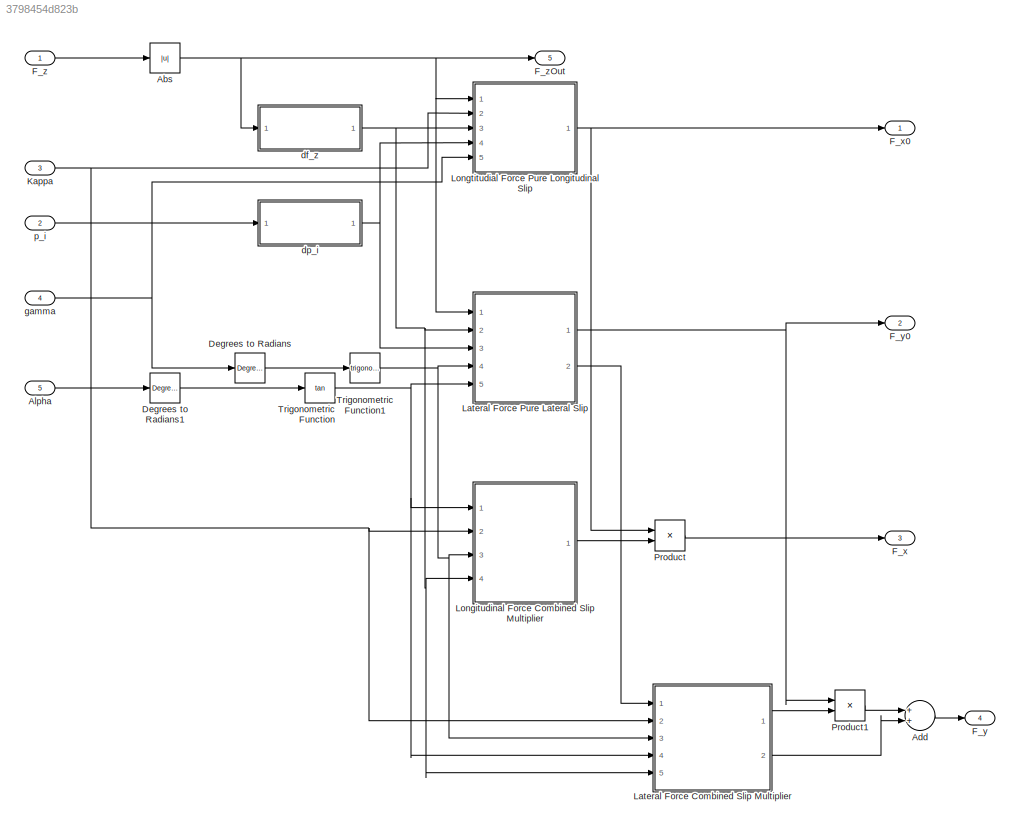
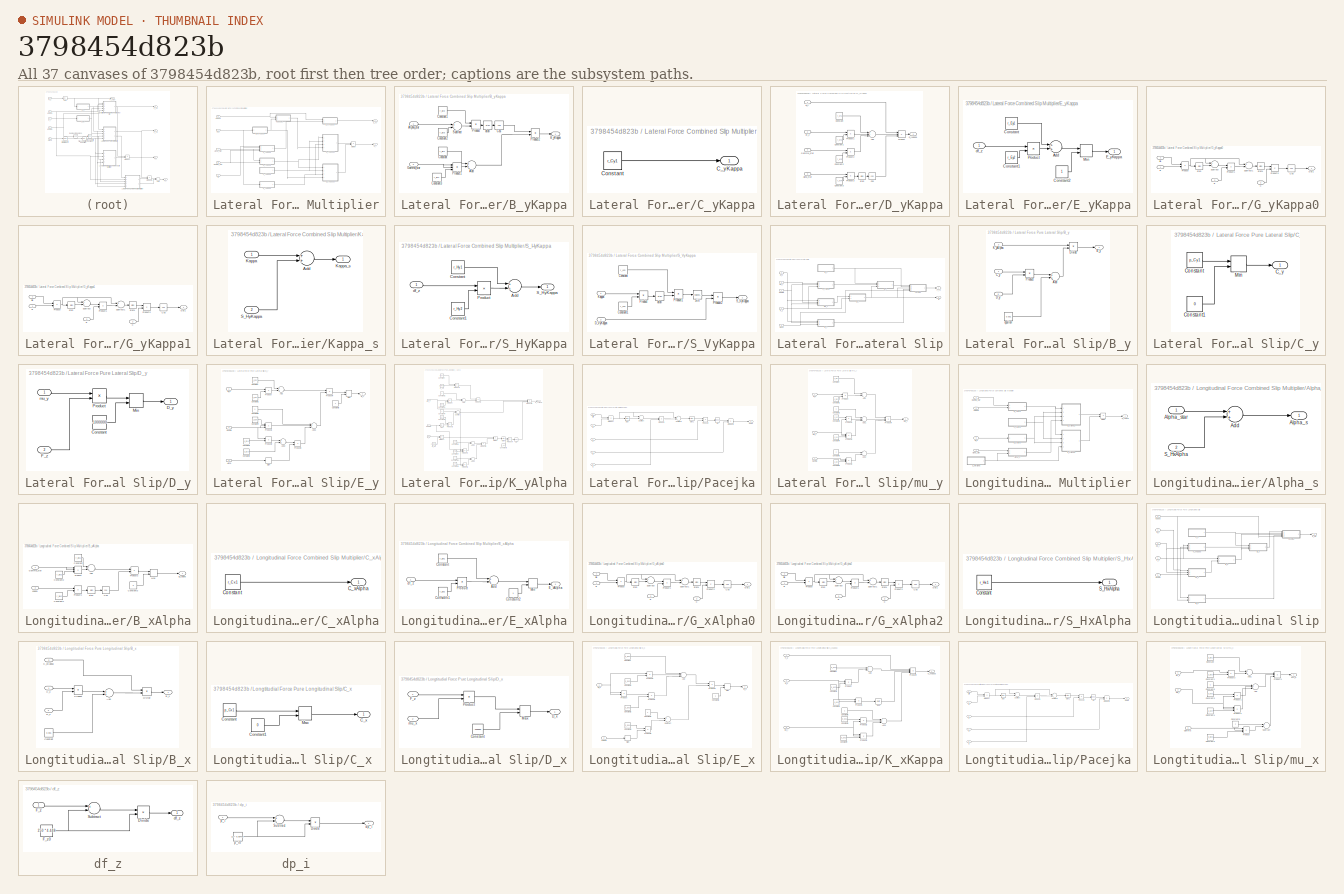
[diagram: thumbnail index - all 37 canvases of the model, root first then tree order]
MODEL slx_3798454d823b
KIND model
CONFIG AbsTol = auto
CONFIG EnableMultiTasking = on
CONFIG FixedStep = auto
CONFIG MaxStep = auto
CONFIG MinStep = auto
CONFIG PostLoadFcn = load('pcoeffs.mat');\nload('rcoeffs.mat');\n\n%load('purelongdata.mat');\n%load('purelongdataval.mat');\n%load('purelatdata.mat');\n%load('purelatdataval.mat');\nload('combineddata.mat');
CONFIG RelTol = 1e-3
CONFIG SampleTimeConstraint = Unconstrained
CONFIG Solver = VariableStepAuto
CONFIG SolverName = VariableStepAuto
CONFIG StartTime = 0.0
CONFIG StopTime = 10.0
BLOCK [Abs] Abs
  SaturateOnIntegerOverflow = off
BLOCK [Sum] Add
  InputSameDT = off
  OutDataTypeStr = Inherit: Inherit via internal rule
  Ports = [2, 1]
  SaturateOnIntegerOverflow = off
BLOCK [Inport] Alpha
  IconDisplay = Port number
  Port = 5
BLOCK [Reference] Degrees to Radians  REF=simulink_extras/Transformations/Degrees to
Radians
  Ports = [1, 1]
  SourceBlock = simulink_extras/Transformations/Degrees to\nRadians
  SourceProductBaseCode = SL
  SourceProductName = Simulink
  SourceType = DegreesToRadians
BLOCK [Reference] Degrees to Radians1  REF=simulink_extras/Transformations/Degrees to
Radians
  Ports = [1, 1]
  SourceBlock = simulink_extras/Transformations/Degrees to\nRadians
  SourceProductBaseCode = SL
  SourceProductName = Simulink
  SourceType = DegreesToRadians
BLOCK [Outport] F_x
  IconDisplay = Port number
  Port = 3
BLOCK [Outport] F_x0
  IconDisplay = Port number
BLOCK [Outport] F_y
  IconDisplay = Port number
  Port = 4
BLOCK [Outport] F_y0
  IconDisplay = Port number
  Port = 2
BLOCK [Inport] F_z
  IconDisplay = Port number
BLOCK [Outport] F_zOut
  IconDisplay = Port number
  Port = 5
BLOCK [Inport] Kappa
  IconDisplay = Port number
  Port = 3
BLOCK [SubSystem] Lateral Force Combined Slip Multiplier
  Ports = [5, 2]
  RequestExecContextInheritance = off
  Variant = off
BLOCK [Inport] Lateral Force Combined Slip Multiplier/Alpha_star
  IconDisplay = Port number
  Port = 4
BLOCK [SubSystem] Lateral Force Combined Slip Multiplier/B_yKappa
  Ports = [2, 1]
  RequestExecContextInheritance = off
  Variant = off
BLOCK [Sum] Lateral Force Combined Slip Multiplier/B_yKappa/Add
  InputSameDT = off
  OutDataTypeStr = Inherit: Inherit via internal rule
  Ports = [2, 1]
  SaturateOnIntegerOverflow = off
BLOCK [Inport] Lateral Force Combined Slip Multiplier/B_yKappa/Alpha_star
  IconDisplay = Port number
BLOCK [Outport] Lateral Force Combined Slip Multiplier/B_yKappa/B_yKappa
  IconDisplay = Port number
BLOCK [Constant] Lateral Force Combined Slip Multiplier/B_yKappa/Constant
  Value = r_By1
BLOCK [Constant] Lateral Force Combined Slip Multiplier/B_yKappa/Constant1
  Value = r_By2
BLOCK [Constant] Lateral Force Combined Slip Multiplier/B_yKappa/Constant2
  Value = r_By3
BLOCK [Constant] Lateral Force Combined Slip Multiplier/B_yKappa/Constant3
  Value = r_By4
BLOCK [Trigonometry] Lateral Force Combined Slip Multiplier/B_yKappa/Cos
  Operator = cos
  Ports = [1, 1]
BLOCK [Inport] Lateral Force Combined Slip Multiplier/B_yKappa/Gamma_star
  IconDisplay = Port number
  Port = 2
BLOCK [Product] Lateral Force Combined Slip Multiplier/B_yKappa/Product
  InputSameDT = off
  OutDataTypeStr = Inherit: Inherit via internal rule
  Ports = [2, 1]
  RndMeth = Floor
  SaturateOnIntegerOverflow = off
BLOCK [Product] Lateral Force Combined Slip Multiplier/B_yKappa/Product1
  InputSameDT = off
  Inputs = 3
  OutDataTypeStr = Inherit: Inherit via internal rule
  Ports = [3, 1]
  RndMeth = Floor
  SaturateOnIntegerOverflow = off
BLOCK [Product] Lateral Force Combined Slip Multiplier/B_yKappa/Product2
  InputSameDT = off
  OutDataTypeStr = Inherit: Inherit via internal rule
  Ports = [2, 1]
  RndMeth = Floor
  SaturateOnIntegerOverflow = off
BLOCK [Sum] Lateral Force Combined Slip Multiplier/B_yKappa/Subtract
  InputSameDT = off
  Inputs = +-
  OutDataTypeStr = Inherit: Inherit via internal rule
  Ports = [2, 1]
  SaturateOnIntegerOverflow = off
BLOCK [Trigonometry] Lateral Force Combined Slip Multiplier/B_yKappa/atan
  Operator = atan
  Ports = [1, 1]
BLOCK [SubSystem] Lateral Force Combined Slip Multiplier/C_yKappa
  Ports = [0, 1]
  RequestExecContextInheritance = off
  Variant = off
BLOCK [Outport] Lateral Force Combined Slip Multiplier/C_yKappa/C_yKappa
  IconDisplay = Port number
BLOCK [Constant] Lateral Force Combined Slip Multiplier/C_yKappa/Constant
  Value = r_Cy1
BLOCK [Inport] Lateral Force Combined Slip Multiplier/D
  IconDisplay = Port number
BLOCK [SubSystem] Lateral Force Combined Slip Multiplier/D_yKappa
  Ports = [4, 1]
  RequestExecContextInheritance = off
  Variant = off
BLOCK [Sum] Lateral Force Combined Slip Multiplier/D_yKappa/Add
  InputSameDT = off
  Inputs = 3
  OutDataTypeStr = Inherit: Inherit via internal rule
  Ports = [3, 1]
  SaturateOnIntegerOverflow = off
BLOCK [Inport] Lateral Force Combined Slip Multiplier/D_yKappa/Alpha_star
  IconDisplay = Port number
  Port = 3
BLOCK [Constant] Lateral Force Combined Slip Multiplier/D_yKappa/Constant
  Value = r_Vy1
BLOCK [Constant] Lateral Force Combined Slip Multiplier/D_yKappa/Constant1
  Value = r_Vy2
BLOCK [Constant] Lateral Force Combined Slip Multiplier/D_yKappa/Constant2
  Value = r_Vy3
BLOCK [Constant] Lateral Force Combined Slip Multiplier/D_yKappa/Constant3
  Value = r_Vy4
BLOCK [Trigonometry] Lateral Force Combined Slip Multiplier/D_yKappa/Cos
  Operator = cos
  Ports = [1, 1]
BLOCK [Inport] Lateral Force Combined Slip Multiplier/D_yKappa/D_y
  IconDisplay = Port number
BLOCK [Outport] Lateral Force Combined Slip Multiplier/D_yKappa/D_yKappa
  IconDisplay = Port number
BLOCK [Inport] Lateral Force Combined Slip Multiplier/D_yKappa/Gamma_star
  IconDisplay = Port number
  Port = 4
BLOCK [Product] Lateral Force Combined Slip Multiplier/D_yKappa/Product
  InputSameDT = off
  Inputs = 3
  OutDataTypeStr = Inherit: Inherit via internal rule
  Ports = [3, 1]
  RndMeth = Floor
  SaturateOnIntegerOverflow = off
BLOCK [Product] Lateral Force Combined Slip Multiplier/D_yKappa/Product1
  InputSameDT = off
  OutDataTypeStr = Inherit: Inherit via internal rule
  Ports = [2, 1]
  RndMeth = Floor
  SaturateOnIntegerOverflow = off
BLOCK [Product] Lateral Force Combined Slip Multiplier/D_yKappa/Product2
  InputSameDT = off
  OutDataTypeStr = Inherit: Inherit via internal rule
  Ports = [2, 1]
  RndMeth = Floor
  SaturateOnIntegerOverflow = off
BLOCK [Product] Lateral Force Combined Slip Multiplier/D_yKappa/Product3
  InputSameDT = off
  OutDataTypeStr = Inherit: Inherit via internal rule
  Ports = [2, 1]
  RndMeth = Floor
  SaturateOnIntegerOverflow = off
BLOCK [Trigonometry] Lateral Force Combined Slip Multiplier/D_yKappa/atan
  Operator = atan
  Ports = [1, 1]
BLOCK [Inport] Lateral Force Combined Slip Multiplier/D_yKappa/df_z
  IconDisplay = Port number
  Port = 2
BLOCK [Product] Lateral Force Combined Slip Multiplier/Divide
  InputSameDT = off
  Inputs = */
  OutDataTypeStr = Inherit: Inherit via internal rule
  Ports = [2, 1]
  RndMeth = Floor
  SaturateOnIntegerOverflow = off
BLOCK [SubSystem] Lateral Force Combined Slip Multiplier/E_yKappa
  Ports = [1, 1]
  RequestExecContextInheritance = off
  Variant = off
BLOCK [Sum] Lateral Force Combined Slip Multiplier/E_yKappa/Add
  InputSameDT = off
  OutDataTypeStr = Inherit: Inherit via internal rule
  Ports = [2, 1]
  SaturateOnIntegerOverflow = off
BLOCK [Constant] Lateral Force Combined Slip Multiplier/E_yKappa/Constant
  Value = r_Ey1
BLOCK [Constant] Lateral Force Combined Slip Multiplier/E_yKappa/Constant1
  Value = r_Ey2
BLOCK [Constant] Lateral Force Combined Slip Multiplier/E_yKappa/Constant2
BLOCK [Outport] Lateral Force Combined Slip Multiplier/E_yKappa/E_yKappa
  IconDisplay = Port number
BLOCK [MinMax] Lateral Force Combined Slip Multiplier/E_yKappa/Min
  InputSameDT = off
  Inputs = 2
  Ports = [2, 1]
  SaturateOnIntegerOverflow = off
BLOCK [Product] Lateral Force Combined Slip Multiplier/E_yKappa/Product
  InputSameDT = off
  OutDataTypeStr = Inherit: Inherit via internal rule
  Ports = [2, 1]
  RndMeth = Floor
  SaturateOnIntegerOverflow = off
BLOCK [Inport] Lateral Force Combined Slip Multiplier/E_yKappa/df_z
  IconDisplay = Port number
BLOCK [Outport] Lateral Force Combined Slip Multiplier/G_y
  IconDisplay = Port number
BLOCK [SubSystem] Lateral Force Combined Slip Multiplier/G_yKappa0
  Ports = [4, 1]
  RequestExecContextInheritance = off
  Variant = off
BLOCK [Inport] Lateral Force Combined Slip Multiplier/G_yKappa0/B
  IconDisplay = Port number
BLOCK [Inport] Lateral Force Combined Slip Multiplier/G_yKappa0/C
  IconDisplay = Port number
  Port = 2
BLOCK [Trigonometry] Lateral Force Combined Slip Multiplier/G_yKappa0/Cos
  Operator = cos
  Ports = [1, 1]
BLOCK [Inport] Lateral Force Combined Slip Multiplier/G_yKappa0/E
  IconDisplay = Port number
  Port = 3
BLOCK [Outport] Lateral Force Combined Slip Multiplier/G_yKappa0/Out1
  IconDisplay = Port number
BLOCK [Product] Lateral Force Combined Slip Multiplier/G_yKappa0/Product
  InputSameDT = off
  OutDataTypeStr = Inherit: Inherit via internal rule
  Ports = [2, 1]
  RndMeth = Floor
  SaturateOnIntegerOverflow = off
BLOCK [Product] Lateral Force Combined Slip Multiplier/G_yKappa0/Product1
  InputSameDT = off
  OutDataTypeStr = Inherit: Inherit via internal rule
  Ports = [2, 1]
  RndMeth = Floor
  SaturateOnIntegerOverflow = off
BLOCK [Product] Lateral Force Combined Slip Multiplier/G_yKappa0/Product2
  InputSameDT = off
  OutDataTypeStr = Inherit: Inherit via internal rule
  Ports = [2, 1]
  RndMeth = Floor
  SaturateOnIntegerOverflow = off
BLOCK [Inport] Lateral Force Combined Slip Multiplier/G_yKappa0/Slip
  IconDisplay = Port number
  Port = 4
BLOCK [Sum] Lateral Force Combined Slip Multiplier/G_yKappa0/Subtract
  InputSameDT = off
  Inputs = +-
  OutDataTypeStr = Inherit: Inherit via internal rule
  Ports = [2, 1]
  SaturateOnIntegerOverflow = off
BLOCK [Sum] Lateral Force Combined Slip Multiplier/G_yKappa0/Subtract1
  InputSameDT = off
  Inputs = +-
  OutDataTypeStr = Inherit: Inherit via internal rule
  Ports = [2, 1]
  SaturateOnIntegerOverflow = off
BLOCK [Trigonometry] Lateral Force Combined Slip Multiplier/G_yKappa0/atan
  Operator = atan
  Ports = [1, 1]
BLOCK [Trigonometry] Lateral Force Combined Slip Multiplier/G_yKappa0/atan1
  Operator = atan
  Ports = [1, 1]
BLOCK [SubSystem] Lateral Force Combined Slip Multiplier/G_yKappa1
  Ports = [4, 1]
  RequestExecContextInheritance = off
  Variant = off
BLOCK [Inport] Lateral Force Combined Slip Multiplier/G_yKappa1/B
  IconDisplay = Port number
BLOCK [Inport] Lateral Force Combined Slip Multiplier/G_yKappa1/C
  IconDisplay = Port number
  Port = 2
BLOCK [Trigonometry] Lateral Force Combined Slip Multiplier/G_yKappa1/Cos
  Operator = cos
  Ports = [1, 1]
BLOCK [Inport] Lateral Force Combined Slip Multiplier/G_yKappa1/E
  IconDisplay = Port number
  Port = 3
BLOCK [Outport] Lateral Force Combined Slip Multiplier/G_yKappa1/Out1
  IconDisplay = Port number
BLOCK [Product] Lateral Force Combined Slip Multiplier/G_yKappa1/Product
  InputSameDT = off
  OutDataTypeStr = Inherit: Inherit via internal rule
  Ports = [2, 1]
  RndMeth = Floor
  SaturateOnIntegerOverflow = off
BLOCK [Product] Lateral Force Combined Slip Multiplier/G_yKappa1/Product1
  InputSameDT = off
  OutDataTypeStr = Inherit: Inherit via internal rule
  Ports = [2, 1]
  RndMeth = Floor
  SaturateOnIntegerOverflow = off
BLOCK [Product] Lateral Force Combined Slip Multiplier/G_yKappa1/Product2
  InputSameDT = off
  OutDataTypeStr = Inherit: Inherit via internal rule
  Ports = [2, 1]
  RndMeth = Floor
  SaturateOnIntegerOverflow = off
BLOCK [Inport] Lateral Force Combined Slip Multiplier/G_yKappa1/Slip
  IconDisplay = Port number
  Port = 4
BLOCK [Sum] Lateral Force Combined Slip Multiplier/G_yKappa1/Subtract
  InputSameDT = off
  Inputs = +-
  OutDataTypeStr = Inherit: Inherit via internal rule
  Ports = [2, 1]
  SaturateOnIntegerOverflow = off
BLOCK [Sum] Lateral Force Combined Slip Multiplier/G_yKappa1/Subtract1
  InputSameDT = off
  Inputs = +-
  OutDataTypeStr = Inherit: Inherit via internal rule
  Ports = [2, 1]
  SaturateOnIntegerOverflow = off
BLOCK [Trigonometry] Lateral Force Combined Slip Multiplier/G_yKappa1/atan
  Operator = atan
  Ports = [1, 1]
BLOCK [Trigonometry] Lateral Force Combined Slip Multiplier/G_yKappa1/atan1
  Operator = atan
  Ports = [1, 1]
BLOCK [Inport] Lateral Force Combined Slip Multiplier/Gamma_star
  IconDisplay = Port number
  Port = 3
BLOCK [Inport] Lateral Force Combined Slip Multiplier/Kappa
  IconDisplay = Port number
  Port = 2
BLOCK [SubSystem] Lateral Force Combined Slip Multiplier/Kappa_s
  Ports = [2, 1]
  RequestExecContextInheritance = off
  Variant = off
BLOCK [Sum] Lateral Force Combined Slip Multiplier/Kappa_s/Add
  InputSameDT = off
  OutDataTypeStr = Inherit: Inherit via internal rule
  Ports = [2, 1]
  SaturateOnIntegerOverflow = off
BLOCK [Inport] Lateral Force Combined Slip Multiplier/Kappa_s/Kappa
  IconDisplay = Port number
BLOCK [Outport] Lateral Force Combined Slip Multiplier/Kappa_s/Kappa_s
  IconDisplay = Port number
BLOCK [Inport] Lateral Force Combined Slip Multiplier/Kappa_s/S_HyKappa
  IconDisplay = Port number
  Port = 2
BLOCK [SubSystem] Lateral Force Combined Slip Multiplier/S_HyKappa
  Ports = [1, 1]
  RequestExecContextInheritance = off
  Variant = off
BLOCK [Sum] Lateral Force Combined Slip Multiplier/S_HyKappa/Add
  InputSameDT = off
  OutDataTypeStr = Inherit: Inherit via internal rule
  Ports = [2, 1]
  SaturateOnIntegerOverflow = off
BLOCK [Constant] Lateral Force Combined Slip Multiplier/S_HyKappa/Constant
  Value = r_Hy1
BLOCK [Constant] Lateral Force Combined Slip Multiplier/S_HyKappa/Constant1
  Value = r_Hy2
BLOCK [Product] Lateral Force Combined Slip Multiplier/S_HyKappa/Product
  InputSameDT = off
  OutDataTypeStr = Inherit: Inherit via internal rule
  Ports = [2, 1]
  RndMeth = Floor
  SaturateOnIntegerOverflow = off
BLOCK [Outport] Lateral Force Combined Slip Multiplier/S_HyKappa/S_HyKappa
  IconDisplay = Port number
BLOCK [Inport] Lateral Force Combined Slip Multiplier/S_HyKappa/df_z
  IconDisplay = Port number
BLOCK [Outport] Lateral Force Combined Slip Multiplier/S_Vy
  IconDisplay = Port number
  Port = 2
BLOCK [SubSystem] Lateral Force Combined Slip Multiplier/S_VyKappa
  Ports = [2, 1]
  RequestExecContextInheritance = off
  Variant = off
BLOCK [Constant] Lateral Force Combined Slip Multiplier/S_VyKappa/Constant
  Value = r_Vy5
BLOCK [Constant] Lateral Force Combined Slip Multiplier/S_VyKappa/Constant1
  Value = r_Vy6
BLOCK [Inport] Lateral Force Combined Slip Multiplier/S_VyKappa/D_VyKappa
  IconDisplay = Port number
  Port = 2
BLOCK [Inport] Lateral Force Combined Slip Multiplier/S_VyKappa/Kappa
  IconDisplay = Port number
BLOCK [Product] Lateral Force Combined Slip Multiplier/S_VyKappa/Product
  InputSameDT = off
  OutDataTypeStr = Inherit: Inherit via internal rule
  Ports = [2, 1]
  RndMeth = Floor
  SaturateOnIntegerOverflow = off
BLOCK [Product] Lateral Force Combined Slip Multiplier/S_VyKappa/Product1
  InputSameDT = off
  OutDataTypeStr = Inherit: Inherit via internal rule
  Ports = [2, 1]
  RndMeth = Floor
  SaturateOnIntegerOverflow = off
BLOCK [Product] Lateral Force Combined Slip Multiplier/S_VyKappa/Product2
  InputSameDT = off
  OutDataTypeStr = Inherit: Inherit via internal rule
  Ports = [2, 1]
  RndMeth = Floor
  SaturateOnIntegerOverflow = off
BLOCK [Outport] Lateral Force Combined Slip Multiplier/S_VyKappa/S_VyKappa
  IconDisplay = Port number
BLOCK [Trigonometry] Lateral Force Combined Slip Multiplier/S_VyKappa/Sin
  Ports = [1, 1]
BLOCK [Trigonometry] Lateral Force Combined Slip Multiplier/S_VyKappa/atan
  Operator = atan
  Ports = [1, 1]
BLOCK [Inport] Lateral Force Combined Slip Multiplier/df_z
  IconDisplay = Port number
  Port = 5
BLOCK [SubSystem] Lateral Force Pure Lateral Slip
  Ports = [5, 2]
  RequestExecContextInheritance = off
  Variant = off
BLOCK [Inport] Lateral Force Pure Lateral Slip/Alpha
  IconDisplay = Port number
  Port = 5
BLOCK [SubSystem] Lateral Force Pure Lateral Slip/B_y
  Ports = [3, 1]
  RequestExecContextInheritance = off
  Variant = off
BLOCK [Sum] Lateral Force Pure Lateral Slip/B_y/Add
  InputSameDT = off
  OutDataTypeStr = Inherit: Inherit via internal rule
  Ports = [2, 1]
  SaturateOnIntegerOverflow = off
BLOCK [Outport] Lateral Force Pure Lateral Slip/B_y/B_y
  IconDisplay = Port number
BLOCK [Inport] Lateral Force Pure Lateral Slip/B_y/C_y
  IconDisplay = Port number
BLOCK [Inport] Lateral Force Pure Lateral Slip/B_y/D_y
  IconDisplay = Port number
  Port = 3
BLOCK [Product] Lateral Force Pure Lateral Slip/B_y/Divide
  InputSameDT = off
  Inputs = */
  OutDataTypeStr = Inherit: Inherit via internal rule
  Ports = [2, 1]
  RndMeth = Floor
  SaturateOnIntegerOverflow = off
BLOCK [Inport] Lateral Force Pure Lateral Slip/B_y/K_yAlpha
  IconDisplay = Port number
  Port = 2
BLOCK [Product] Lateral Force Pure Lateral Slip/B_y/Product
  InputSameDT = off
  OutDataTypeStr = Inherit: Inherit via internal rule
  Ports = [2, 1]
  RndMeth = Floor
  SaturateOnIntegerOverflow = off
BLOCK [Constant] Lateral Force Pure Lateral Slip/B_y/epsilon 
  Value = 0.001
BLOCK [SubSystem] Lateral Force Pure Lateral Slip/C_y
  Ports = [0, 1]
  RequestExecContextInheritance = off
  Variant = off
BLOCK [Outport] Lateral Force Pure Lateral Slip/C_y/C_y
  IconDisplay = Port number
BLOCK [Constant] Lateral Force Pure Lateral Slip/C_y/Constant
  Value = p_Cy1
BLOCK [Constant] Lateral Force Pure Lateral Slip/C_y/Constant1
  Value = 0
BLOCK [MinMax] Lateral Force Pure Lateral Slip/C_y/Min
  Function = max
  InputSameDT = off
  Inputs = 2
  Ports = [2, 1]
  SaturateOnIntegerOverflow = off
BLOCK [Outport] Lateral Force Pure Lateral Slip/D
  IconDisplay = Port number
  Port = 2
BLOCK [SubSystem] Lateral Force Pure Lateral Slip/D_y
  Ports = [2, 1]
  RequestExecContextInheritance = off
  Variant = off
BLOCK [Constant] Lateral Force Pure Lateral Slip/D_y/Constant
  Value = -1000000
BLOCK [Outport] Lateral Force Pure Lateral Slip/D_y/D_y
  IconDisplay = Port number
BLOCK [Inport] Lateral Force Pure Lateral Slip/D_y/F_z
  IconDisplay = Port number
  Port = 2
BLOCK [MinMax] Lateral Force Pure Lateral Slip/D_y/Min
  Function = max
  InputSameDT = off
  Inputs = 2
  Ports = [2, 1]
  SaturateOnIntegerOverflow = off
BLOCK [Product] Lateral Force Pure Lateral Slip/D_y/Product
  InputSameDT = off
  OutDataTypeStr = Inherit: Inherit via internal rule
  Ports = [2, 1]
  RndMeth = Floor
  SaturateOnIntegerOverflow = off
BLOCK [Inport] Lateral Force Pure Lateral Slip/D_y/mu_y
  IconDisplay = Port number
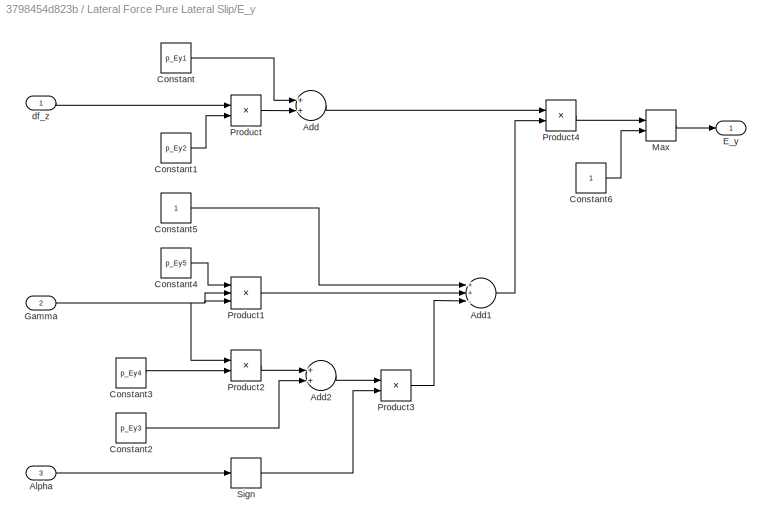
BLOCK [SubSystem] Lateral Force Pure Lateral Slip/E_y
  Ports = [3, 1]
  RequestExecContextInheritance = off
  Variant = off
BLOCK [Sum] Lateral Force Pure Lateral Slip/E_y/Add
  InputSameDT = off
  OutDataTypeStr = Inherit: Inherit via internal rule
  Ports = [2, 1]
  SaturateOnIntegerOverflow = off
BLOCK [Sum] Lateral Force Pure Lateral Slip/E_y/Add1
  InputSameDT = off
  Inputs = ++-
  OutDataTypeStr = Inherit: Inherit via internal rule
  Ports = [3, 1]
  SaturateOnIntegerOverflow = off
BLOCK [Sum] Lateral Force Pure Lateral Slip/E_y/Add2
  InputSameDT = off
  OutDataTypeStr = Inherit: Inherit via internal rule
  Ports = [2, 1]
  SaturateOnIntegerOverflow = off
BLOCK [Inport] Lateral Force Pure Lateral Slip/E_y/Alpha
  IconDisplay = Port number
  Port = 3
BLOCK [Constant] Lateral Force Pure Lateral Slip/E_y/Constant
  Value = p_Ey1
BLOCK [Constant] Lateral Force Pure Lateral Slip/E_y/Constant1
  Value = p_Ey2
BLOCK [Constant] Lateral Force Pure Lateral Slip/E_y/Constant2
  Value = p_Ey3
BLOCK [Constant] Lateral Force Pure Lateral Slip/E_y/Constant3
  Value = p_Ey4
BLOCK [Constant] Lateral Force Pure Lateral Slip/E_y/Constant4
  Value = p_Ey5
BLOCK [Constant] Lateral Force Pure Lateral Slip/E_y/Constant5
BLOCK [Constant] Lateral Force Pure Lateral Slip/E_y/Constant6
BLOCK [Outport] Lateral Force Pure Lateral Slip/E_y/E_y
  IconDisplay = Port number
BLOCK [Inport] Lateral Force Pure Lateral Slip/E_y/Gamma
  IconDisplay = Port number
  Port = 2
BLOCK [MinMax] Lateral Force Pure Lateral Slip/E_y/Max
  InputSameDT = off
  Inputs = 2
  Ports = [2, 1]
  SaturateOnIntegerOverflow = off
BLOCK [Product] Lateral Force Pure Lateral Slip/E_y/Product
  InputSameDT = off
  OutDataTypeStr = Inherit: Inherit via internal rule
  Ports = [2, 1]
  RndMeth = Floor
  SaturateOnIntegerOverflow = off
BLOCK [Product] Lateral Force Pure Lateral Slip/E_y/Product1
  InputSameDT = off
  Inputs = 3
  OutDataTypeStr = Inherit: Inherit via internal rule
  Ports = [3, 1]
  RndMeth = Floor
  SaturateOnIntegerOverflow = off
BLOCK [Product] Lateral Force Pure Lateral Slip/E_y/Product2
  InputSameDT = off
  OutDataTypeStr = Inherit: Inherit via internal rule
  Ports = [2, 1]
  RndMeth = Floor
  SaturateOnIntegerOverflow = off
BLOCK [Product] Lateral Force Pure Lateral Slip/E_y/Product3
  InputSameDT = off
  OutDataTypeStr = Inherit: Inherit via internal rule
  Ports = [2, 1]
  RndMeth = Floor
  SaturateOnIntegerOverflow = off
BLOCK [Product] Lateral Force Pure Lateral Slip/E_y/Product4
  InputSameDT = off
  OutDataTypeStr = Inherit: Inherit via internal rule
  Ports = [2, 1]
  RndMeth = Floor
  SaturateOnIntegerOverflow = off
BLOCK [Signum] Lateral Force Pure Lateral Slip/E_y/Sign
BLOCK [Inport] Lateral Force Pure Lateral Slip/E_y/df_z
  IconDisplay = Port number
BLOCK [Outport] Lateral Force Pure Lateral Slip/F_y0
  IconDisplay = Port number
BLOCK [Inport] Lateral Force Pure Lateral Slip/F_z
  IconDisplay = Port number
BLOCK [Inport] Lateral Force Pure Lateral Slip/Gamma
  IconDisplay = Port number
  Port = 4
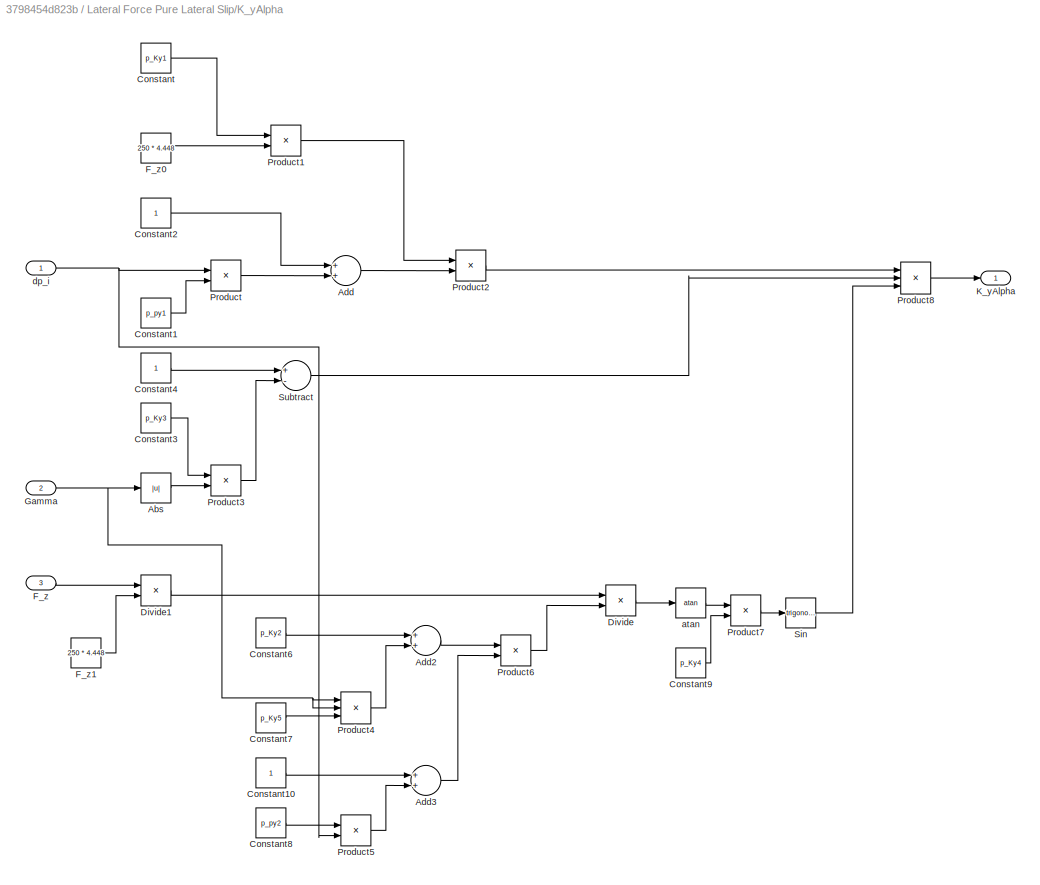
BLOCK [SubSystem] Lateral Force Pure Lateral Slip/K_yAlpha
  Ports = [3, 1]
  RequestExecContextInheritance = off
  Variant = off
BLOCK [Abs] Lateral Force Pure Lateral Slip/K_yAlpha/Abs
  SaturateOnIntegerOverflow = off
BLOCK [Sum] Lateral Force Pure Lateral Slip/K_yAlpha/Add
  InputSameDT = off
  OutDataTypeStr = Inherit: Inherit via internal rule
  Ports = [2, 1]
  SaturateOnIntegerOverflow = off
BLOCK [Sum] Lateral Force Pure Lateral Slip/K_yAlpha/Add2
  InputSameDT = off
  OutDataTypeStr = Inherit: Inherit via internal rule
  Ports = [2, 1]
  SaturateOnIntegerOverflow = off
BLOCK [Sum] Lateral Force Pure Lateral Slip/K_yAlpha/Add3
  InputSameDT = off
  OutDataTypeStr = Inherit: Inherit via internal rule
  Ports = [2, 1]
  SaturateOnIntegerOverflow = off
BLOCK [Constant] Lateral Force Pure Lateral Slip/K_yAlpha/Constant
  Value = p_Ky1
BLOCK [Constant] Lateral Force Pure Lateral Slip/K_yAlpha/Constant1
  Value = p_py1
BLOCK [Constant] Lateral Force Pure Lateral Slip/K_yAlpha/Constant10
BLOCK [Constant] Lateral Force Pure Lateral Slip/K_yAlpha/Constant2
BLOCK [Constant] Lateral Force Pure Lateral Slip/K_yAlpha/Constant3
  Value = p_Ky3
BLOCK [Constant] Lateral Force Pure Lateral Slip/K_yAlpha/Constant4
BLOCK [Constant] Lateral Force Pure Lateral Slip/K_yAlpha/Constant6
  Value = p_Ky2
BLOCK [Constant] Lateral Force Pure Lateral Slip/K_yAlpha/Constant7
  Value = p_Ky5
BLOCK [Constant] Lateral Force Pure Lateral Slip/K_yAlpha/Constant8
  Value = p_py2
BLOCK [Constant] Lateral Force Pure Lateral Slip/K_yAlpha/Constant9
  Value = p_Ky4
BLOCK [Product] Lateral Force Pure Lateral Slip/K_yAlpha/Divide
  InputSameDT = off
  Inputs = */
  OutDataTypeStr = Inherit: Inherit via internal rule
  Ports = [2, 1]
  RndMeth = Floor
  SaturateOnIntegerOverflow = off
BLOCK [Product] Lateral Force Pure Lateral Slip/K_yAlpha/Divide1
  InputSameDT = off
  Inputs = */
  OutDataTypeStr = Inherit: Inherit via internal rule
  Ports = [2, 1]
  RndMeth = Floor
  SaturateOnIntegerOverflow = off
BLOCK [Inport] Lateral Force Pure Lateral Slip/K_yAlpha/F_z
  IconDisplay = Port number
  Port = 3
BLOCK [Constant] Lateral Force Pure Lateral Slip/K_yAlpha/F_z0
  Value = 250 * 4.448
BLOCK [Constant] Lateral Force Pure Lateral Slip/K_yAlpha/F_z1
  Value = 250 * 4.448
BLOCK [Inport] Lateral Force Pure Lateral Slip/K_yAlpha/Gamma
  IconDisplay = Port number
  Port = 2
BLOCK [Outport] Lateral Force Pure Lateral Slip/K_yAlpha/K_yAlpha
  IconDisplay = Port number
BLOCK [Product] Lateral Force Pure Lateral Slip/K_yAlpha/Product
  InputSameDT = off
  OutDataTypeStr = Inherit: Inherit via internal rule
  Ports = [2, 1]
  RndMeth = Floor
  SaturateOnIntegerOverflow = off
BLOCK [Product] Lateral Force Pure Lateral Slip/K_yAlpha/Product1
  InputSameDT = off
  OutDataTypeStr = Inherit: Inherit via internal rule
  Ports = [2, 1]
  RndMeth = Floor
  SaturateOnIntegerOverflow = off
BLOCK [Product] Lateral Force Pure Lateral Slip/K_yAlpha/Product2
  InputSameDT = off
  OutDataTypeStr = Inherit: Inherit via internal rule
  Ports = [2, 1]
  RndMeth = Floor
  SaturateOnIntegerOverflow = off
BLOCK [Product] Lateral Force Pure Lateral Slip/K_yAlpha/Product3
  InputSameDT = off
  OutDataTypeStr = Inherit: Inherit via internal rule
  Ports = [2, 1]
  RndMeth = Floor
  SaturateOnIntegerOverflow = off
BLOCK [Product] Lateral Force Pure Lateral Slip/K_yAlpha/Product4
  InputSameDT = off
  Inputs = 3
  OutDataTypeStr = Inherit: Inherit via internal rule
  Ports = [3, 1]
  RndMeth = Floor
  SaturateOnIntegerOverflow = off
BLOCK [Product] Lateral Force Pure Lateral Slip/K_yAlpha/Product5
  InputSameDT = off
  OutDataTypeStr = Inherit: Inherit via internal rule
  Ports = [2, 1]
  RndMeth = Floor
  SaturateOnIntegerOverflow = off
BLOCK [Product] Lateral Force Pure Lateral Slip/K_yAlpha/Product6
  InputSameDT = off
  OutDataTypeStr = Inherit: Inherit via internal rule
  Ports = [2, 1]
  RndMeth = Floor
  SaturateOnIntegerOverflow = off
BLOCK [Product] Lateral Force Pure Lateral Slip/K_yAlpha/Product7
  InputSameDT = off
  OutDataTypeStr = Inherit: Inherit via internal rule
  Ports = [2, 1]
  RndMeth = Floor
  SaturateOnIntegerOverflow = off
BLOCK [Product] Lateral Force Pure Lateral Slip/K_yAlpha/Product8
  InputSameDT = off
  Inputs = 3
  OutDataTypeStr = Inherit: Inherit via internal rule
  Ports = [3, 1]
  RndMeth = Floor
  SaturateOnIntegerOverflow = off
BLOCK [Trigonometry] Lateral Force Pure Lateral Slip/K_yAlpha/Sin
  Ports = [1, 1]
BLOCK [Sum] Lateral Force Pure Lateral Slip/K_yAlpha/Subtract
  InputSameDT = off
  Inputs = +-
  OutDataTypeStr = Inherit: Inherit via internal rule
  Ports = [2, 1]
  SaturateOnIntegerOverflow = off
BLOCK [Trigonometry] Lateral Force Pure Lateral Slip/K_yAlpha/atan
  Operator = atan
  Ports = [1, 1]
BLOCK [Inport] Lateral Force Pure Lateral Slip/K_yAlpha/dp_i
  IconDisplay = Port number
BLOCK [SubSystem] Lateral Force Pure Lateral Slip/Pacejka
  Ports = [5, 1]
  RequestExecContextInheritance = off
  Variant = off
BLOCK [Inport] Lateral Force Pure Lateral Slip/Pacejka/B
  IconDisplay = Port number
BLOCK [Inport] Lateral Force Pure Lateral Slip/Pacejka/C
  IconDisplay = Port number
  Port = 2
BLOCK [Inport] Lateral Force Pure Lateral Slip/Pacejka/D
  IconDisplay = Port number
  Port = 3
BLOCK [Inport] Lateral Force Pure Lateral Slip/Pacejka/E
  IconDisplay = Port number
  Port = 4
BLOCK [Outport] Lateral Force Pure Lateral Slip/Pacejka/Force
  IconDisplay = Port number
BLOCK [Product] Lateral Force Pure Lateral Slip/Pacejka/Product
  InputSameDT = off
  OutDataTypeStr = Inherit: Inherit via internal rule
  Ports = [2, 1]
  RndMeth = Floor
  SaturateOnIntegerOverflow = off
BLOCK [Product] Lateral Force Pure Lateral Slip/Pacejka/Product1
  InputSameDT = off
  OutDataTypeStr = Inherit: Inherit via internal rule
  Ports = [2, 1]
  RndMeth = Floor
  SaturateOnIntegerOverflow = off
BLOCK [Product] Lateral Force Pure Lateral Slip/Pacejka/Product2
  InputSameDT = off
  OutDataTypeStr = Inherit: Inherit via internal rule
  Ports = [2, 1]
  RndMeth = Floor
  SaturateOnIntegerOverflow = off
BLOCK [Product] Lateral Force Pure Lateral Slip/Pacejka/Product3
  InputSameDT = off
  OutDataTypeStr = Inherit: Inherit via internal rule
  Ports = [2, 1]
  RndMeth = Floor
  SaturateOnIntegerOverflow = off
BLOCK [Trigonometry] Lateral Force Pure Lateral Slip/Pacejka/Sin
  Ports = [1, 1]
BLOCK [Inport] Lateral Force Pure Lateral Slip/Pacejka/Slip 
  IconDisplay = Port number
  Port = 5
BLOCK [Sum] Lateral Force Pure Lateral Slip/Pacejka/Subtract
  InputSameDT = off
  Inputs = +-
  OutDataTypeStr = Inherit: Inherit via internal rule
  Ports = [2, 1]
  SaturateOnIntegerOverflow = off
BLOCK [Sum] Lateral Force Pure Lateral Slip/Pacejka/Subtract1
  InputSameDT = off
  Inputs = +-
  OutDataTypeStr = Inherit: Inherit via internal rule
  Ports = [2, 1]
  SaturateOnIntegerOverflow = off
BLOCK [Trigonometry] Lateral Force Pure Lateral Slip/Pacejka/atan
  Operator = atan
  Ports = [1, 1]
BLOCK [Trigonometry] Lateral Force Pure Lateral Slip/Pacejka/atan1
  Operator = atan
  Ports = [1, 1]
BLOCK [Inport] Lateral Force Pure Lateral Slip/df_z
  IconDisplay = Port number
  Port = 2
BLOCK [Inport] Lateral Force Pure Lateral Slip/dp_i
  IconDisplay = Port number
  Port = 3
BLOCK [SubSystem] Lateral Force Pure Lateral Slip/mu_y
  Ports = [3, 1]
  RequestExecContextInheritance = off
  Variant = off
BLOCK [Sum] Lateral Force Pure Lateral Slip/mu_y/Add
  InputSameDT = off
  OutDataTypeStr = Inherit: Inherit via internal rule
  Ports = [2, 1]
  SaturateOnIntegerOverflow = off
BLOCK [Sum] Lateral Force Pure Lateral Slip/mu_y/Add1
  InputSameDT = off
  Inputs = 3
  OutDataTypeStr = Inherit: Inherit via internal rule
  Ports = [3, 1]
  SaturateOnIntegerOverflow = off
BLOCK [Sum] Lateral Force Pure Lateral Slip/mu_y/Add2
  InputSameDT = off
  Inputs = +-
  OutDataTypeStr = Inherit: Inherit via internal rule
  Ports = [2, 1]
  SaturateOnIntegerOverflow = off
BLOCK [Constant] Lateral Force Pure Lateral Slip/mu_y/Constant
  Value = p_Dy1
BLOCK [Constant] Lateral Force Pure Lateral Slip/mu_y/Constant1
  Value = p_Dy2
BLOCK [Constant] Lateral Force Pure Lateral Slip/mu_y/Constant2
BLOCK [Constant] Lateral Force Pure Lateral Slip/mu_y/Constant3
  Value = p_py3
BLOCK [Constant] Lateral Force Pure Lateral Slip/mu_y/Constant4
  Value = p_py4
BLOCK [Constant] Lateral Force Pure Lateral Slip/mu_y/Constant5
BLOCK [Constant] Lateral Force Pure Lateral Slip/mu_y/Constant6
  Value = p_Dy3
BLOCK [Inport] Lateral Force Pure Lateral Slip/mu_y/Gamma
  IconDisplay = Port number
  Port = 3
BLOCK [Product] Lateral Force Pure Lateral Slip/mu_y/Product
  InputSameDT = off
  OutDataTypeStr = Inherit: Inherit via internal rule
  Ports = [2, 1]
  RndMeth = Floor
  SaturateOnIntegerOverflow = off
BLOCK [Product] Lateral Force Pure Lateral Slip/mu_y/Product1
  InputSameDT = off
  OutDataTypeStr = Inherit: Inherit via internal rule
  Ports = [2, 1]
  RndMeth = Floor
  SaturateOnIntegerOverflow = off
BLOCK [Product] Lateral Force Pure Lateral Slip/mu_y/Product2
  InputSameDT = off
  Inputs = 3
  OutDataTypeStr = Inherit: Inherit via internal rule
  Ports = [3, 1]
  RndMeth = Floor
  SaturateOnIntegerOverflow = off
BLOCK [Product] Lateral Force Pure Lateral Slip/mu_y/Product3
  InputSameDT = off
  Inputs = 3
  OutDataTypeStr = Inherit: Inherit via internal rule
  Ports = [3, 1]
  RndMeth = Floor
  SaturateOnIntegerOverflow = off
BLOCK [Product] Lateral Force Pure Lateral Slip/mu_y/Product4
  InputSameDT = off
  Inputs = 3
  OutDataTypeStr = Inherit: Inherit via internal rule
  Ports = [3, 1]
  RndMeth = Floor
  SaturateOnIntegerOverflow = off
BLOCK [Inport] Lateral Force Pure Lateral Slip/mu_y/df_z
  IconDisplay = Port number
BLOCK [Inport] Lateral Force Pure Lateral Slip/mu_y/dp_i
  IconDisplay = Port number
  Port = 2
BLOCK [Outport] Lateral Force Pure Lateral Slip/mu_y/mu_y
  IconDisplay = Port number
BLOCK [SubSystem] Longitudinal Force Combined Slip Multiplier
  Ports = [4, 1]
  RequestExecContextInheritance = off
  Variant = off
BLOCK [SubSystem] Longitudinal Force Combined Slip Multiplier/Alpha_s
  Ports = [2, 1]
  RequestExecContextInheritance = off
  Variant = off
BLOCK [Sum] Longitudinal Force Combined Slip Multiplier/Alpha_s/Add
  InputSameDT = off
  OutDataTypeStr = Inherit: Inherit via internal rule
  Ports = [2, 1]
  SaturateOnIntegerOverflow = off
BLOCK [Outport] Longitudinal Force Combined Slip Multiplier/Alpha_s/Alpha_s
  IconDisplay = Port number
BLOCK [Inport] Longitudinal Force Combined Slip Multiplier/Alpha_s/Alpha_star
  IconDisplay = Port number
BLOCK [Inport] Longitudinal Force Combined Slip Multiplier/Alpha_s/S_HxAlpha
  IconDisplay = Port number
  Port = 2
BLOCK [Inport] Longitudinal Force Combined Slip Multiplier/Alpha_star
  IconDisplay = Port number
BLOCK [SubSystem] Longitudinal Force Combined Slip Multiplier/B_xAlpha
  Ports = [2, 1]
  RequestExecContextInheritance = off
  Variant = off
BLOCK [Sum] Longitudinal Force Combined Slip Multiplier/B_xAlpha/Add
  InputSameDT = off
  OutDataTypeStr = Inherit: Inherit via internal rule
  Ports = [2, 1]
  SaturateOnIntegerOverflow = off
BLOCK [Outport] Longitudinal Force Combined Slip Multiplier/B_xAlpha/B_xAlpha
  IconDisplay = Port number
BLOCK [Constant] Longitudinal Force Combined Slip Multiplier/B_xAlpha/Constant
  Value = r_Bx1
BLOCK [Constant] Longitudinal Force Combined Slip Multiplier/B_xAlpha/Constant1
  Value = r_Bx2
BLOCK [Constant] Longitudinal Force Combined Slip Multiplier/B_xAlpha/Constant2
  Value = r_Bx3
BLOCK [Constant] Longitudinal Force Combined Slip Multiplier/B_xAlpha/Constant3
  Value = 0
BLOCK [Trigonometry] Longitudinal Force Combined Slip Multiplier/B_xAlpha/Cos
  Operator = cos
  Ports = [1, 1]
BLOCK [Inport] Longitudinal Force Combined Slip Multiplier/B_xAlpha/Gamma_star
  IconDisplay = Port number
BLOCK [Inport] Longitudinal Force Combined Slip Multiplier/B_xAlpha/Kappa
  IconDisplay = Port number
  Port = 2
BLOCK [MinMax] Longitudinal Force Combined Slip Multiplier/B_xAlpha/Max
  Function = max
  InputSameDT = off
  Inputs = 2
  Ports = [2, 1]
  SaturateOnIntegerOverflow = off
BLOCK [Product] Longitudinal Force Combined Slip Multiplier/B_xAlpha/Product
  InputSameDT = off
  Inputs = 3
  OutDataTypeStr = Inherit: Inherit via internal rule
  Ports = [3, 1]
  RndMeth = Floor
  SaturateOnIntegerOverflow = off
BLOCK [Product] Longitudinal Force Combined Slip Multiplier/B_xAlpha/Product1
  InputSameDT = off
  OutDataTypeStr = Inherit: Inherit via internal rule
  Ports = [2, 1]
  RndMeth = Floor
  SaturateOnIntegerOverflow = off
BLOCK [Product] Longitudinal Force Combined Slip Multiplier/B_xAlpha/Product2
  InputSameDT = off
  OutDataTypeStr = Inherit: Inherit via internal rule
  Ports = [2, 1]
  RndMeth = Floor
  SaturateOnIntegerOverflow = off
BLOCK [Trigonometry] Longitudinal Force Combined Slip Multiplier/B_xAlpha/atan
  Operator = atan
  Ports = [1, 1]
BLOCK [SubSystem] Longitudinal Force Combined Slip Multiplier/C_xAlpha
  Ports = [0, 1]
  RequestExecContextInheritance = off
  Variant = off
BLOCK [Outport] Longitudinal Force Combined Slip Multiplier/C_xAlpha/C_xAlpha
  IconDisplay = Port number
BLOCK [Constant] Longitudinal Force Combined Slip Multiplier/C_xAlpha/Constant
  Value = r_Cx1
BLOCK [Product] Longitudinal Force Combined Slip Multiplier/Divide
  InputSameDT = off
  Inputs = */
  OutDataTypeStr = Inherit: Inherit via internal rule
  Ports = [2, 1]
  RndMeth = Floor
  SaturateOnIntegerOverflow = off
BLOCK [SubSystem] Longitudinal Force Combined Slip Multiplier/E_xAlpha
  Ports = [1, 1]
  RequestExecContextInheritance = off
  Variant = off
BLOCK [Sum] Longitudinal Force Combined Slip Multiplier/E_xAlpha/Add
  InputSameDT = off
  OutDataTypeStr = Inherit: Inherit via internal rule
  Ports = [2, 1]
  SaturateOnIntegerOverflow = off
BLOCK [Constant] Longitudinal Force Combined Slip Multiplier/E_xAlpha/Constant
  Value = r_Ex1
BLOCK [Constant] Longitudinal Force Combined Slip Multiplier/E_xAlpha/Constant1
  Value = r_Ex2
BLOCK [Constant] Longitudinal Force Combined Slip Multiplier/E_xAlpha/Constant2
BLOCK [Outport] Longitudinal Force Combined Slip Multiplier/E_xAlpha/E_xAlpha
  IconDisplay = Port number
BLOCK [MinMax] Longitudinal Force Combined Slip Multiplier/E_xAlpha/Min
  InputSameDT = off
  Inputs = 2
  Ports = [2, 1]
  SaturateOnIntegerOverflow = off
BLOCK [Product] Longitudinal Force Combined Slip Multiplier/E_xAlpha/Product
  InputSameDT = off
  OutDataTypeStr = Inherit: Inherit via internal rule
  Ports = [2, 1]
  RndMeth = Floor
  SaturateOnIntegerOverflow = off
BLOCK [Inport] Longitudinal Force Combined Slip Multiplier/E_xAlpha/df_z
  IconDisplay = Port number
BLOCK [Outport] Longitudinal Force Combined Slip Multiplier/G_xAlpha
  IconDisplay = Port number
BLOCK [SubSystem] Longitudinal Force Combined Slip Multiplier/G_xAlpha0
  Ports = [4, 1]
  RequestExecContextInheritance = off
  Variant = off
BLOCK [Inport] Longitudinal Force Combined Slip Multiplier/G_xAlpha0/B
  IconDisplay = Port number
BLOCK [Inport] Longitudinal Force Combined Slip Multiplier/G_xAlpha0/C
  IconDisplay = Port number
  Port = 2
BLOCK [Trigonometry] Longitudinal Force Combined Slip Multiplier/G_xAlpha0/Cos
  Operator = cos
  Ports = [1, 1]
BLOCK [Inport] Longitudinal Force Combined Slip Multiplier/G_xAlpha0/E
  IconDisplay = Port number
  Port = 3
BLOCK [Outport] Longitudinal Force Combined Slip Multiplier/G_xAlpha0/Out1
  IconDisplay = Port number
BLOCK [Product] Longitudinal Force Combined Slip Multiplier/G_xAlpha0/Product
  InputSameDT = off
  OutDataTypeStr = Inherit: Inherit via internal rule
  Ports = [2, 1]
  RndMeth = Floor
  SaturateOnIntegerOverflow = off
BLOCK [Product] Longitudinal Force Combined Slip Multiplier/G_xAlpha0/Product1
  InputSameDT = off
  OutDataTypeStr = Inherit: Inherit via internal rule
  Ports = [2, 1]
  RndMeth = Floor
  SaturateOnIntegerOverflow = off
BLOCK [Product] Longitudinal Force Combined Slip Multiplier/G_xAlpha0/Product2
  InputSameDT = off
  OutDataTypeStr = Inherit: Inherit via internal rule
  Ports = [2, 1]
  RndMeth = Floor
  SaturateOnIntegerOverflow = off
BLOCK [Inport] Longitudinal Force Combined Slip Multiplier/G_xAlpha0/Slip
  IconDisplay = Port number
  Port = 4
BLOCK [Sum] Longitudinal Force Combined Slip Multiplier/G_xAlpha0/Subtract
  InputSameDT = off
  Inputs = +-
  OutDataTypeStr = Inherit: Inherit via internal rule
  Ports = [2, 1]
  SaturateOnIntegerOverflow = off
BLOCK [Sum] Longitudinal Force Combined Slip Multiplier/G_xAlpha0/Subtract1
  InputSameDT = off
  Inputs = +-
  OutDataTypeStr = Inherit: Inherit via internal rule
  Ports = [2, 1]
  SaturateOnIntegerOverflow = off
BLOCK [Trigonometry] Longitudinal Force Combined Slip Multiplier/G_xAlpha0/atan
  Operator = atan
  Ports = [1, 1]
BLOCK [Trigonometry] Longitudinal Force Combined Slip Multiplier/G_xAlpha0/atan1
  Operator = atan
  Ports = [1, 1]
BLOCK [SubSystem] Longitudinal Force Combined Slip Multiplier/G_xAlpha2
  Ports = [4, 1]
  RequestExecContextInheritance = off
  Variant = off
BLOCK [Inport] Longitudinal Force Combined Slip Multiplier/G_xAlpha2/B
  IconDisplay = Port number
BLOCK [Inport] Longitudinal Force Combined Slip Multiplier/G_xAlpha2/C
  IconDisplay = Port number
  Port = 2
BLOCK [Trigonometry] Longitudinal Force Combined Slip Multiplier/G_xAlpha2/Cos
  Operator = cos
  Ports = [1, 1]
BLOCK [Inport] Longitudinal Force Combined Slip Multiplier/G_xAlpha2/E
  IconDisplay = Port number
  Port = 3
BLOCK [Outport] Longitudinal Force Combined Slip Multiplier/G_xAlpha2/Out1
  IconDisplay = Port number
BLOCK [Product] Longitudinal Force Combined Slip Multiplier/G_xAlpha2/Product
  InputSameDT = off
  OutDataTypeStr = Inherit: Inherit via internal rule
  Ports = [2, 1]
  RndMeth = Floor
  SaturateOnIntegerOverflow = off
BLOCK [Product] Longitudinal Force Combined Slip Multiplier/G_xAlpha2/Product1
  InputSameDT = off
  OutDataTypeStr = Inherit: Inherit via internal rule
  Ports = [2, 1]
  RndMeth = Floor
  SaturateOnIntegerOverflow = off
BLOCK [Product] Longitudinal Force Combined Slip Multiplier/G_xAlpha2/Product2
  InputSameDT = off
  OutDataTypeStr = Inherit: Inherit via internal rule
  Ports = [2, 1]
  RndMeth = Floor
  SaturateOnIntegerOverflow = off
BLOCK [Inport] Longitudinal Force Combined Slip Multiplier/G_xAlpha2/Slip
  IconDisplay = Port number
  Port = 4
BLOCK [Sum] Longitudinal Force Combined Slip Multiplier/G_xAlpha2/Subtract
  InputSameDT = off
  Inputs = +-
  OutDataTypeStr = Inherit: Inherit via internal rule
  Ports = [2, 1]
  SaturateOnIntegerOverflow = off
BLOCK [Sum] Longitudinal Force Combined Slip Multiplier/G_xAlpha2/Subtract1
  InputSameDT = off
  Inputs = +-
  OutDataTypeStr = Inherit: Inherit via internal rule
  Ports = [2, 1]
  SaturateOnIntegerOverflow = off
BLOCK [Trigonometry] Longitudinal Force Combined Slip Multiplier/G_xAlpha2/atan
  Operator = atan
  Ports = [1, 1]
BLOCK [Trigonometry] Longitudinal Force Combined Slip Multiplier/G_xAlpha2/atan1
  Operator = atan
  Ports = [1, 1]
BLOCK [Inport] Longitudinal Force Combined Slip Multiplier/Gamma_star
  IconDisplay = Port number
  Port = 3
BLOCK [Inport] Longitudinal Force Combined Slip Multiplier/Kappa
  IconDisplay = Port number
  Port = 2
BLOCK [SubSystem] Longitudinal Force Combined Slip Multiplier/S_HxAlpha
  Ports = [0, 1]
  RequestExecContextInheritance = off
  Variant = off
BLOCK [Constant] Longitudinal Force Combined Slip Multiplier/S_HxAlpha/Constant
  Value = r_Hx1
BLOCK [Outport] Longitudinal Force Combined Slip Multiplier/S_HxAlpha/S_HxAlpha
  IconDisplay = Port number
BLOCK [Inport] Longitudinal Force Combined Slip Multiplier/df_z
  IconDisplay = Port number
  Port = 4
BLOCK [SubSystem] Longtitudial Force Pure Longitudinal Slip
  Ports = [5, 1]
  RequestExecContextInheritance = off
  Variant = off
BLOCK [SubSystem] Longtitudial Force Pure Longitudinal Slip/B_x
  Ports = [3, 1]
  RequestExecContextInheritance = off
  Variant = off
BLOCK [Sum] Longtitudial Force Pure Longitudinal Slip/B_x/Add
  InputSameDT = off
  OutDataTypeStr = Inherit: Inherit via internal rule
  Ports = [2, 1]
  SaturateOnIntegerOverflow = off
BLOCK [Outport] Longtitudial Force Pure Longitudinal Slip/B_x/B_x
  IconDisplay = Port number
BLOCK [Inport] Longtitudial Force Pure Longitudinal Slip/B_x/C_x
  IconDisplay = Port number
BLOCK [Constant] Longtitudial Force Pure Longitudinal Slip/B_x/Constant
  Value = 0.001
BLOCK [Inport] Longtitudial Force Pure Longitudinal Slip/B_x/D_x
  IconDisplay = Port number
  Port = 3
BLOCK [Product] Longtitudial Force Pure Longitudinal Slip/B_x/Divide
  InputSameDT = off
  Inputs = */
  OutDataTypeStr = Inherit: Inherit via internal rule
  Ports = [2, 1]
  RndMeth = Floor
  SaturateOnIntegerOverflow = off
BLOCK [Inport] Longtitudial Force Pure Longitudinal Slip/B_x/K_xKappa
  IconDisplay = Port number
  Port = 2
BLOCK [Product] Longtitudial Force Pure Longitudinal Slip/B_x/Product
  InputSameDT = off
  OutDataTypeStr = Inherit: Inherit via internal rule
  Ports = [2, 1]
  RndMeth = Floor
  SaturateOnIntegerOverflow = off
BLOCK [SubSystem] Longtitudial Force Pure Longitudinal Slip/C_x 
  Ports = [0, 1]
  RequestExecContextInheritance = off
  Variant = off
BLOCK [Outport] Longtitudial Force Pure Longitudinal Slip/C_x /C_x
  IconDisplay = Port number
BLOCK [Constant] Longtitudial Force Pure Longitudinal Slip/C_x /Constant
  Value = p_Cx1
BLOCK [Constant] Longtitudial Force Pure Longitudinal Slip/C_x /Constant1
  Value = 0
BLOCK [MinMax] Longtitudial Force Pure Longitudinal Slip/C_x /Max
  Function = max
  InputSameDT = off
  Inputs = 2
  Ports = [2, 1]
  SaturateOnIntegerOverflow = off
BLOCK [SubSystem] Longtitudial Force Pure Longitudinal Slip/D_x
  Ports = [2, 1]
  RequestExecContextInheritance = off
  Variant = off
BLOCK [Constant] Longtitudial Force Pure Longitudinal Slip/D_x/Constant
  Value = -100000
BLOCK [Outport] Longtitudial Force Pure Longitudinal Slip/D_x/D_x
  IconDisplay = Port number
BLOCK [Inport] Longtitudial Force Pure Longitudinal Slip/D_x/F_z
  IconDisplay = Port number
BLOCK [MinMax] Longtitudial Force Pure Longitudinal Slip/D_x/Max
  Function = max
  InputSameDT = off
  Inputs = 2
  Ports = [2, 1]
  SaturateOnIntegerOverflow = off
BLOCK [Product] Longtitudial Force Pure Longitudinal Slip/D_x/Product
  InputSameDT = off
  OutDataTypeStr = Inherit: Inherit via internal rule
  Ports = [2, 1]
  RndMeth = Floor
  SaturateOnIntegerOverflow = off
BLOCK [Inport] Longtitudial Force Pure Longitudinal Slip/D_x/mu_x
  IconDisplay = Port number
  Port = 2
BLOCK [SubSystem] Longtitudial Force Pure Longitudinal Slip/E_x
  Ports = [2, 1]
  RequestExecContextInheritance = off
  Variant = off
BLOCK [Sum] Longtitudial Force Pure Longitudinal Slip/E_x/Add
  InputSameDT = off
  Inputs = 3
  OutDataTypeStr = Inherit: Inherit via internal rule
  Ports = [3, 1]
  SaturateOnIntegerOverflow = off
BLOCK [Constant] Longtitudial Force Pure Longitudinal Slip/E_x/Constant
  Value = p_Ex1
BLOCK [Constant] Longtitudial Force Pure Longitudinal Slip/E_x/Constant1
  Value = p_Ex2
BLOCK [Constant] Longtitudial Force Pure Longitudinal Slip/E_x/Constant2
  Value = p_Ex3
BLOCK [Constant] Longtitudial Force Pure Longitudinal Slip/E_x/Constant3
  Value = p_Ex4
BLOCK [Constant] Longtitudial Force Pure Longitudinal Slip/E_x/Constant4
BLOCK [Constant] Longtitudial Force Pure Longitudinal Slip/E_x/Constant5
BLOCK [Outport] Longtitudial Force Pure Longitudinal Slip/E_x/E_x
  IconDisplay = Port number
BLOCK [MinMax] Longtitudial Force Pure Longitudinal Slip/E_x/Max
  InputSameDT = off
  Inputs = 2
  Ports = [2, 1]
  SaturateOnIntegerOverflow = off
BLOCK [Product] Longtitudial Force Pure Longitudinal Slip/E_x/Product
  InputSameDT = off
  OutDataTypeStr = Inherit: Inherit via internal rule
  Ports = [2, 1]
  RndMeth = Floor
  SaturateOnIntegerOverflow = off
BLOCK [Product] Longtitudial Force Pure Longitudinal Slip/E_x/Product1
  InputSameDT = off
  OutDataTypeStr = Inherit: Inherit via internal rule
  Ports = [2, 1]
  RndMeth = Floor
  SaturateOnIntegerOverflow = off
BLOCK [Product] Longtitudial Force Pure Longitudinal Slip/E_x/Product2
  InputSameDT = off
  OutDataTypeStr = Inherit: Inherit via internal rule
  Ports = [2, 1]
  RndMeth = Floor
  SaturateOnIntegerOverflow = off
BLOCK [Product] Longtitudial Force Pure Longitudinal Slip/E_x/Product3
  InputSameDT = off
  OutDataTypeStr = Inherit: Inherit via internal rule
  Ports = [2, 1]
  RndMeth = Floor
  SaturateOnIntegerOverflow = off
BLOCK [Product] Longtitudial Force Pure Longitudinal Slip/E_x/Product4
  InputSameDT = off
  OutDataTypeStr = Inherit: Inherit via internal rule
  Ports = [2, 1]
  RndMeth = Floor
  SaturateOnIntegerOverflow = off
BLOCK [Signum] Longtitudial Force Pure Longitudinal Slip/E_x/Sign
BLOCK [Sum] Longtitudial Force Pure Longitudinal Slip/E_x/Subtract
  InputSameDT = off
  Inputs = +-
  OutDataTypeStr = Inherit: Inherit via internal rule
  Ports = [2, 1]
  SaturateOnIntegerOverflow = off
BLOCK [Inport] Longtitudial Force Pure Longitudinal Slip/E_x/df_z
  IconDisplay = Port number
BLOCK [Inport] Longtitudial Force Pure Longitudinal Slip/E_x/kappa 
  IconDisplay = Port number
  Port = 2
BLOCK [Outport] Longtitudial Force Pure Longitudinal Slip/F_x0
  IconDisplay = Port number
BLOCK [Inport] Longtitudial Force Pure Longitudinal Slip/F_z
  IconDisplay = Port number
BLOCK [Inport] Longtitudial Force Pure Longitudinal Slip/Gamma
  IconDisplay = Port number
  Port = 5
BLOCK [SubSystem] Longtitudial Force Pure Longitudinal Slip/K_xKappa
  Ports = [3, 1]
  RequestExecContextInheritance = off
  Variant = off
BLOCK [Sum] Longtitudial Force Pure Longitudinal Slip/K_xKappa/Add
  InputSameDT = off
  OutDataTypeStr = Inherit: Inherit via internal rule
  Ports = [2, 1]
  SaturateOnIntegerOverflow = off
BLOCK [Sum] Longtitudial Force Pure Longitudinal Slip/K_xKappa/Add1
  InputSameDT = off
  Inputs = 3
  OutDataTypeStr = Inherit: Inherit via internal rule
  Ports = [3, 1]
  SaturateOnIntegerOverflow = off
BLOCK [Constant] Longtitudial Force Pure Longitudinal Slip/K_xKappa/Constant
  Value = p_Kx1
BLOCK [Constant] Longtitudial Force Pure Longitudinal Slip/K_xKappa/Constant1
  Value = p_Kx2
BLOCK [Constant] Longtitudial Force Pure Longitudinal Slip/K_xKappa/Constant2
  Value = p_Kx3
BLOCK [Constant] Longtitudial Force Pure Longitudinal Slip/K_xKappa/Constant3
  Value = p_px1
BLOCK [Constant] Longtitudial Force Pure Longitudinal Slip/K_xKappa/Constant4
  Value = p_px2
BLOCK [Constant] Longtitudial Force Pure Longitudinal Slip/K_xKappa/Constant5
BLOCK [Math] Longtitudial Force Pure Longitudinal Slip/K_xKappa/Exp
  Ports = [1, 1]
BLOCK [Inport] Longtitudial Force Pure Longitudinal Slip/K_xKappa/F_z
  IconDisplay = Port number
BLOCK [Outport] Longtitudial Force Pure Longitudinal Slip/K_xKappa/K_xKappa
  IconDisplay = Port number
BLOCK [Product] Longtitudial Force Pure Longitudinal Slip/K_xKappa/Product
  InputSameDT = off
  OutDataTypeStr = Inherit: Inherit via internal rule
  Ports = [2, 1]
  RndMeth = Floor
  SaturateOnIntegerOverflow = off
BLOCK [Product] Longtitudial Force Pure Longitudinal Slip/K_xKappa/Product1
  InputSameDT = off
  OutDataTypeStr = Inherit: Inherit via internal rule
  Ports = [2, 1]
  RndMeth = Floor
  SaturateOnIntegerOverflow = off
BLOCK [Product] Longtitudial Force Pure Longitudinal Slip/K_xKappa/Product2
  InputSameDT = off
  OutDataTypeStr = Inherit: Inherit via internal rule
  Ports = [2, 1]
  RndMeth = Floor
  SaturateOnIntegerOverflow = off
BLOCK [Product] Longtitudial Force Pure Longitudinal Slip/K_xKappa/Product3
  InputSameDT = off
  Inputs = 3
  OutDataTypeStr = Inherit: Inherit via internal rule
  Ports = [3, 1]
  RndMeth = Floor
  SaturateOnIntegerOverflow = off
BLOCK [Product] Longtitudial Force Pure Longitudinal Slip/K_xKappa/Product4
  InputSameDT = off
  Inputs = 4
  OutDataTypeStr = Inherit: Inherit via internal rule
  Ports = [4, 1]
  RndMeth = Floor
  SaturateOnIntegerOverflow = off
BLOCK [Inport] Longtitudial Force Pure Longitudinal Slip/K_xKappa/df_z
  IconDisplay = Port number
  Port = 2
BLOCK [Inport] Longtitudial Force Pure Longitudinal Slip/K_xKappa/dp_i
  IconDisplay = Port number
  Port = 3
BLOCK [Inport] Longtitudial Force Pure Longitudinal Slip/Kappa
  IconDisplay = Port number
  Port = 2
BLOCK [SubSystem] Longtitudial Force Pure Longitudinal Slip/Pacejka
  Ports = [5, 1]
  RequestExecContextInheritance = off
  Variant = off
BLOCK [Inport] Longtitudial Force Pure Longitudinal Slip/Pacejka/B
  IconDisplay = Port number
BLOCK [Inport] Longtitudial Force Pure Longitudinal Slip/Pacejka/C
  IconDisplay = Port number
  Port = 2
BLOCK [Inport] Longtitudial Force Pure Longitudinal Slip/Pacejka/D
  IconDisplay = Port number
  Port = 3
BLOCK [Inport] Longtitudial Force Pure Longitudinal Slip/Pacejka/E
  IconDisplay = Port number
  Port = 4
BLOCK [Outport] Longtitudial Force Pure Longitudinal Slip/Pacejka/Force
  IconDisplay = Port number
BLOCK [Product] Longtitudial Force Pure Longitudinal Slip/Pacejka/Product
  InputSameDT = off
  OutDataTypeStr = Inherit: Inherit via internal rule
  Ports = [2, 1]
  RndMeth = Floor
  SaturateOnIntegerOverflow = off
BLOCK [Product] Longtitudial Force Pure Longitudinal Slip/Pacejka/Product1
  InputSameDT = off
  OutDataTypeStr = Inherit: Inherit via internal rule
  Ports = [2, 1]
  RndMeth = Floor
  SaturateOnIntegerOverflow = off
BLOCK [Product] Longtitudial Force Pure Longitudinal Slip/Pacejka/Product2
  InputSameDT = off
  OutDataTypeStr = Inherit: Inherit via internal rule
  Ports = [2, 1]
  RndMeth = Floor
  SaturateOnIntegerOverflow = off
BLOCK [Product] Longtitudial Force Pure Longitudinal Slip/Pacejka/Product3
  InputSameDT = off
  OutDataTypeStr = Inherit: Inherit via internal rule
  Ports = [2, 1]
  RndMeth = Floor
  SaturateOnIntegerOverflow = off
BLOCK [Trigonometry] Longtitudial Force Pure Longitudinal Slip/Pacejka/Sin
  Ports = [1, 1]
BLOCK [Inport] Longtitudial Force Pure Longitudinal Slip/Pacejka/Slip 
  IconDisplay = Port number
  Port = 5
BLOCK [Sum] Longtitudial Force Pure Longitudinal Slip/Pacejka/Subtract
  InputSameDT = off
  Inputs = +-
  OutDataTypeStr = Inherit: Inherit via internal rule
  Ports = [2, 1]
  SaturateOnIntegerOverflow = off
BLOCK [Sum] Longtitudial Force Pure Longitudinal Slip/Pacejka/Subtract1
  InputSameDT = off
  Inputs = +-
  OutDataTypeStr = Inherit: Inherit via internal rule
  Ports = [2, 1]
  SaturateOnIntegerOverflow = off
BLOCK [Trigonometry] Longtitudial Force Pure Longitudinal Slip/Pacejka/atan
  Operator = atan
  Ports = [1, 1]
BLOCK [Trigonometry] Longtitudial Force Pure Longitudinal Slip/Pacejka/atan1
  Operator = atan
  Ports = [1, 1]
BLOCK [Inport] Longtitudial Force Pure Longitudinal Slip/df_z
  IconDisplay = Port number
  Port = 3
BLOCK [Inport] Longtitudial Force Pure Longitudinal Slip/dp_i
  IconDisplay = Port number
  Port = 4
BLOCK [SubSystem] Longtitudial Force Pure Longitudinal Slip/mu_x
  Ports = [3, 1]
  RequestExecContextInheritance = off
  Variant = off
BLOCK [Sum] Longtitudial Force Pure Longitudinal Slip/mu_x/Add
  InputSameDT = off
  Inputs = 3
  OutDataTypeStr = Inherit: Inherit via internal rule
  Ports = [3, 1]
  SaturateOnIntegerOverflow = off
BLOCK [Sum] Longtitudial Force Pure Longitudinal Slip/mu_x/Add1
  InputSameDT = off
  OutDataTypeStr = Inherit: Inherit via internal rule
  Ports = [2, 1]
  SaturateOnIntegerOverflow = off
BLOCK [Constant] Longtitudial Force Pure Longitudinal Slip/mu_x/Constant
  Value = p_Dx1
BLOCK [Constant] Longtitudial Force Pure Longitudinal Slip/mu_x/Constant1
  Value = p_Dx2
BLOCK [Constant] Longtitudial Force Pure Longitudinal Slip/mu_x/Constant2
  Value = p_Dx3
BLOCK [Constant] Longtitudial Force Pure Longitudinal Slip/mu_x/Constant3
  Value = p_px3
BLOCK [Constant] Longtitudial Force Pure Longitudinal Slip/mu_x/Constant4
  Value = p_px4
BLOCK [Constant] Longtitudial Force Pure Longitudinal Slip/mu_x/Constant5
BLOCK [Constant] Longtitudial Force Pure Longitudinal Slip/mu_x/Constant6
BLOCK [Inport] Longtitudial Force Pure Longitudinal Slip/mu_x/Gamma
  IconDisplay = Port number
  Port = 3
BLOCK [Product] Longtitudial Force Pure Longitudinal Slip/mu_x/Product
  InputSameDT = off
  Inputs = 3
  OutDataTypeStr = Inherit: Inherit via internal rule
  Ports = [3, 1]
  RndMeth = Floor
  SaturateOnIntegerOverflow = off
BLOCK [Product] Longtitudial Force Pure Longitudinal Slip/mu_x/Product1
  InputSameDT = off
  OutDataTypeStr = Inherit: Inherit via internal rule
  Ports = [2, 1]
  RndMeth = Floor
  SaturateOnIntegerOverflow = off
BLOCK [Product] Longtitudial Force Pure Longitudinal Slip/mu_x/Product2
  InputSameDT = off
  Inputs = 3
  OutDataTypeStr = Inherit: Inherit via internal rule
  Ports = [3, 1]
  RndMeth = Floor
  SaturateOnIntegerOverflow = off
BLOCK [Product] Longtitudial Force Pure Longitudinal Slip/mu_x/Product3
  InputSameDT = off
  OutDataTypeStr = Inherit: Inherit via internal rule
  Ports = [2, 1]
  RndMeth = Floor
  SaturateOnIntegerOverflow = off
BLOCK [Product] Longtitudial Force Pure Longitudinal Slip/mu_x/Product4
  InputSameDT = off
  Inputs = 3
  OutDataTypeStr = Inherit: Inherit via internal rule
  Ports = [3, 1]
  RndMeth = Floor
  SaturateOnIntegerOverflow = off
BLOCK [Sum] Longtitudial Force Pure Longitudinal Slip/mu_x/Subtract
  InputSameDT = off
  Inputs = +-
  OutDataTypeStr = Inherit: Inherit via internal rule
  Ports = [2, 1]
  SaturateOnIntegerOverflow = off
BLOCK [Inport] Longtitudial Force Pure Longitudinal Slip/mu_x/df_z
  IconDisplay = Port number
BLOCK [Inport] Longtitudial Force Pure Longitudinal Slip/mu_x/dp_i
  IconDisplay = Port number
  Port = 2
BLOCK [Outport] Longtitudial Force Pure Longitudinal Slip/mu_x/mu_x
  IconDisplay = Port number
BLOCK [Product] Product
  InputSameDT = off
  OutDataTypeStr = Inherit: Inherit via internal rule
  Ports = [2, 1]
  RndMeth = Floor
  SaturateOnIntegerOverflow = off
BLOCK [Product] Product1
  InputSameDT = off
  OutDataTypeStr = Inherit: Inherit via internal rule
  Ports = [2, 1]
  RndMeth = Floor
  SaturateOnIntegerOverflow = off
BLOCK [Trigonometry] Trigonometric Function
  Operator = tan
  Ports = [1, 1]
BLOCK [Trigonometry] Trigonometric Function1
  Ports = [1, 1]
BLOCK [SubSystem] df_z
  Ports = [1, 1]
  RequestExecContextInheritance = off
  Variant = off
BLOCK [Product] df_z/Divide
  InputSameDT = off
  Inputs = */
  OutDataTypeStr = Inherit: Inherit via internal rule
  Ports = [2, 1]
  RndMeth = Floor
  SaturateOnIntegerOverflow = off
BLOCK [Inport] df_z/F_z
  IconDisplay = Port number
BLOCK [Constant] df_z/F_z0
  Value = 250 * 4.448
BLOCK [Sum] df_z/Subtract
  InputSameDT = off
  Inputs = +-
  OutDataTypeStr = Inherit: Inherit via internal rule
  Ports = [2, 1]
  SaturateOnIntegerOverflow = off
BLOCK [Outport] df_z/df_z
  IconDisplay = Port number
BLOCK [SubSystem] dp_i
  Ports = [1, 1]
  RequestExecContextInheritance = off
  Variant = off
BLOCK [Product] dp_i/Divide
  InputSameDT = off
  Inputs = */
  OutDataTypeStr = Inherit: Inherit via internal rule
  Ports = [2, 1]
  RndMeth = Floor
  SaturateOnIntegerOverflow = off
BLOCK [Sum] dp_i/Subtract
  InputSameDT = off
  Inputs = +-
  OutDataTypeStr = Inherit: Inherit via internal rule
  Ports = [2, 1]
  SaturateOnIntegerOverflow = off
BLOCK [Outport] dp_i/dp_i
  IconDisplay = Port number
BLOCK [Inport] dp_i/p_i
  IconDisplay = Port number
BLOCK [Constant] dp_i/p_i0
  Value = 12 * 6.89476
BLOCK [Inport] gamma
  IconDisplay = Port number
  Port = 4
BLOCK [Inport] p_i
  IconDisplay = Port number
  Port = 2
NET Abs:1 -> F_zOut:1, Lateral Force Pure Lateral Slip:1, Longtitudial Force Pure Longitudinal Slip:1, df_z:1
LINE Add:1 -> F_y:1
LINE Alpha:1 -> Degrees to Radians1:1
LINE Degrees to Radians1:1 -> Trigonometric Function:1
LINE Degrees to Radians:1 -> Trigonometric Function1:1
LINE F_z:1 -> Abs:1
NET Kappa:1 -> Lateral Force Combined Slip Multiplier:2, Longitudinal Force Combined Slip Multiplier:2, Longtitudial Force Pure Longitudinal Slip:2
NET Lateral Force Combined Slip Multiplier/Alpha_star:1 -> Lateral Force Combined Slip Multiplier/B_yKappa:1, Lateral Force Combined Slip Multiplier/D_yKappa:3
LINE Lateral Force Combined Slip Multiplier/B_yKappa/Add:1 -> Lateral Force Combined Slip Multiplier/B_yKappa/Product2:2
LINE Lateral Force Combined Slip Multiplier/B_yKappa/Alpha_star:1 -> Lateral Force Combined Slip Multiplier/B_yKappa/Subtract:1
LINE Lateral Force Combined Slip Multiplier/B_yKappa/Constant1:1 -> Lateral Force Combined Slip Multiplier/B_yKappa/Product:1
LINE Lateral Force Combined Slip Multiplier/B_yKappa/Constant2:1 -> Lateral Force Combined Slip Multiplier/B_yKappa/Subtract:2
LINE Lateral Force Combined Slip Multiplier/B_yKappa/Constant3:1 -> Lateral Force Combined Slip Multiplier/B_yKappa/Product1:3
LINE Lateral Force Combined Slip Multiplier/B_yKappa/Constant:1 -> Lateral Force Combined Slip Multiplier/B_yKappa/Add:1
LINE Lateral Force Combined Slip Multiplier/B_yKappa/Cos:1 -> Lateral Force Combined Slip Multiplier/B_yKappa/Product2:1
NET Lateral Force Combined Slip Multiplier/B_yKappa/Gamma_star:1 -> Lateral Force Combined Slip Multiplier/B_yKappa/Product1:1, Lateral Force Combined Slip Multiplier/B_yKappa/Product1:2
LINE Lateral Force Combined Slip Multiplier/B_yKappa/Product1:1 -> Lateral Force Combined Slip Multiplier/B_yKappa/Add:2
LINE Lateral Force Combined Slip Multiplier/B_yKappa/Product2:1 -> Lateral Force Combined Slip Multiplier/B_yKappa/B_yKappa:1
LINE Lateral Force Combined Slip Multiplier/B_yKappa/Product:1 -> Lateral Force Combined Slip Multiplier/B_yKappa/atan:1
LINE Lateral Force Combined Slip Multiplier/B_yKappa/Subtract:1 -> Lateral Force Combined Slip Multiplier/B_yKappa/Product:2
LINE Lateral Force Combined Slip Multiplier/B_yKappa/atan:1 -> Lateral Force Combined Slip Multiplier/B_yKappa/Cos:1
NET Lateral Force Combined Slip Multiplier/B_yKappa:1 -> Lateral Force Combined Slip Multiplier/G_yKappa0:1, Lateral Force Combined Slip Multiplier/G_yKappa1:1
LINE Lateral Force Combined Slip Multiplier/C_yKappa/Constant:1 -> Lateral Force Combined Slip Multiplier/C_yKappa/C_yKappa:1
NET Lateral Force Combined Slip Multiplier/C_yKappa:1 -> Lateral Force Combined Slip Multiplier/G_yKappa0:2, Lateral Force Combined Slip Multiplier/G_yKappa1:2
LINE Lateral Force Combined Slip Multiplier/D:1 -> Lateral Force Combined Slip Multiplier/D_yKappa:1
LINE Lateral Force Combined Slip Multiplier/D_yKappa/Add:1 -> Lateral Force Combined Slip Multiplier/D_yKappa/Product:2
LINE Lateral Force Combined Slip Multiplier/D_yKappa/Alpha_star:1 -> Lateral Force Combined Slip Multiplier/D_yKappa/Product3:1
LINE Lateral Force Combined Slip Multiplier/D_yKappa/Constant1:1 -> Lateral Force Combined Slip Multiplier/D_yKappa/Product1:2
LINE Lateral Force Combined Slip Multiplier/D_yKappa/Constant2:1 -> Lateral Force Combined Slip Multiplier/D_yKappa/Product2:2
LINE Lateral Force Combined Slip Multiplier/D_yKappa/Constant3:1 -> Lateral Force Combined Slip Multiplier/D_yKappa/Product3:2
LINE Lateral Force Combined Slip Multiplier/D_yKappa/Constant:1 -> Lateral Force Combined Slip Multiplier/D_yKappa/Add:1
LINE Lateral Force Combined Slip Multiplier/D_yKappa/Cos:1 -> Lateral Force Combined Slip Multiplier/D_yKappa/Product:3
LINE Lateral Force Combined Slip Multiplier/D_yKappa/D_y:1 -> Lateral Force Combined Slip Multiplier/D_yKappa/Product:1
LINE Lateral Force Combined Slip Multiplier/D_yKappa/Gamma_star:1 -> Lateral Force Combined Slip Multiplier/D_yKappa/Product2:1
LINE Lateral Force Combined Slip Multiplier/D_yKappa/Product1:1 -> Lateral Force Combined Slip Multiplier/D_yKappa/Add:2
LINE Lateral Force Combined Slip Multiplier/D_yKappa/Product2:1 -> Lateral Force Combined Slip Multiplier/D_yKappa/Add:3
LINE Lateral Force Combined Slip Multiplier/D_yKappa/Product3:1 -> Lateral Force Combined Slip Multiplier/D_yKappa/atan:1
LINE Lateral Force Combined Slip Multiplier/D_yKappa/Product:1 -> Lateral Force Combined Slip Multiplier/D_yKappa/D_yKappa:1
LINE Lateral Force Combined Slip Multiplier/D_yKappa/atan:1 -> Lateral Force Combined Slip Multiplier/D_yKappa/Cos:1
LINE Lateral Force Combined Slip Multiplier/D_yKappa/df_z:1 -> Lateral Force Combined Slip Multiplier/D_yKappa/Product1:1
LINE Lateral Force Combined Slip Multiplier/D_yKappa:1 -> Lateral Force Combined Slip Multiplier/S_VyKappa:2
LINE Lateral Force Combined Slip Multiplier/Divide:1 -> Lateral Force Combined Slip Multiplier/G_y:1
LINE Lateral Force Combined Slip Multiplier/E_yKappa/Add:1 -> Lateral Force Combined Slip Multiplier/E_yKappa/Min:1
LINE Lateral Force Combined Slip Multiplier/E_yKappa/Constant1:1 -> Lateral Force Combined Slip Multiplier/E_yKappa/Product:2
LINE Lateral Force Combined Slip Multiplier/E_yKappa/Constant2:1 -> Lateral Force Combined Slip Multiplier/E_yKappa/Min:2
LINE Lateral Force Combined Slip Multiplier/E_yKappa/Constant:1 -> Lateral Force Combined Slip Multiplier/E_yKappa/Add:1
LINE Lateral Force Combined Slip Multiplier/E_yKappa/Min:1 -> Lateral Force Combined Slip Multiplier/E_yKappa/E_yKappa:1
LINE Lateral Force Combined Slip Multiplier/E_yKappa/Product:1 -> Lateral Force Combined Slip Multiplier/E_yKappa/Add:2
LINE Lateral Force Combined Slip Multiplier/E_yKappa/df_z:1 -> Lateral Force Combined Slip Multiplier/E_yKappa/Product:1
NET Lateral Force Combined Slip Multiplier/E_yKappa:1 -> Lateral Force Combined Slip Multiplier/G_yKappa0:3, Lateral Force Combined Slip Multiplier/G_yKappa1:3
LINE Lateral Force Combined Slip Multiplier/G_yKappa0/B:1 -> Lateral Force Combined Slip Multiplier/G_yKappa0/Product:2
LINE Lateral Force Combined Slip Multiplier/G_yKappa0/C:1 -> Lateral Force Combined Slip Multiplier/G_yKappa0/Product2:2
LINE Lateral Force Combined Slip Multiplier/G_yKappa0/Cos:1 -> Lateral Force Combined Slip Multiplier/G_yKappa0/Out1:1
LINE Lateral Force Combined Slip Multiplier/G_yKappa0/E:1 -> Lateral Force Combined Slip Multiplier/G_yKappa0/Product1:2
LINE Lateral Force Combined Slip Multiplier/G_yKappa0/Product1:1 -> Lateral Force Combined Slip Multiplier/G_yKappa0/Subtract1:2
LINE Lateral Force Combined Slip Multiplier/G_yKappa0/Product2:1 -> Lateral Force Combined Slip Multiplier/G_yKappa0/Cos:1
NET Lateral Force Combined Slip Multiplier/G_yKappa0/Product:1 -> Lateral Force Combined Slip Multiplier/G_yKappa0/Subtract1:1, Lateral Force Combined Slip Multiplier/G_yKappa0/Subtract:1, Lateral Force Combined Slip Multiplier/G_yKappa0/atan:1
LINE Lateral Force Combined Slip Multiplier/G_yKappa0/Slip:1 -> Lateral Force Combined Slip Multiplier/G_yKappa0/Product:1
LINE Lateral Force Combined Slip Multiplier/G_yKappa0/Subtract1:1 -> Lateral Force Combined Slip Multiplier/G_yKappa0/atan1:1
LINE Lateral Force Combined Slip Multiplier/G_yKappa0/Subtract:1 -> Lateral Force Combined Slip Multiplier/G_yKappa0/Product1:1
LINE Lateral Force Combined Slip Multiplier/G_yKappa0/atan1:1 -> Lateral Force Combined Slip Multiplier/G_yKappa0/Product2:1
LINE Lateral Force Combined Slip Multiplier/G_yKappa0/atan:1 -> Lateral Force Combined Slip Multiplier/G_yKappa0/Subtract:2
LINE Lateral Force Combined Slip Multiplier/G_yKappa0:1 -> Lateral Force Combined Slip Multiplier/Divide:2
LINE Lateral Force Combined Slip Multiplier/G_yKappa1/B:1 -> Lateral Force Combined Slip Multiplier/G_yKappa1/Product:2
LINE Lateral Force Combined Slip Multiplier/G_yKappa1/C:1 -> Lateral Force Combined Slip Multiplier/G_yKappa1/Product2:2
LINE Lateral Force Combined Slip Multiplier/G_yKappa1/Cos:1 -> Lateral Force Combined Slip Multiplier/G_yKappa1/Out1:1
LINE Lateral Force Combined Slip Multiplier/G_yKappa1/E:1 -> Lateral Force Combined Slip Multiplier/G_yKappa1/Product1:2
LINE Lateral Force Combined Slip Multiplier/G_yKappa1/Product1:1 -> Lateral Force Combined Slip Multiplier/G_yKappa1/Subtract1:2
LINE Lateral Force Combined Slip Multiplier/G_yKappa1/Product2:1 -> Lateral Force Combined Slip Multiplier/G_yKappa1/Cos:1
NET Lateral Force Combined Slip Multiplier/G_yKappa1/Product:1 -> Lateral Force Combined Slip Multiplier/G_yKappa1/Subtract1:1, Lateral Force Combined Slip Multiplier/G_yKappa1/Subtract:1, Lateral Force Combined Slip Multiplier/G_yKappa1/atan:1
LINE Lateral Force Combined Slip Multiplier/G_yKappa1/Slip:1 -> Lateral Force Combined Slip Multiplier/G_yKappa1/Product:1
LINE Lateral Force Combined Slip Multiplier/G_yKappa1/Subtract1:1 -> Lateral Force Combined Slip Multiplier/G_yKappa1/atan1:1
LINE Lateral Force Combined Slip Multiplier/G_yKappa1/Subtract:1 -> Lateral Force Combined Slip Multiplier/G_yKappa1/Product1:1
LINE Lateral Force Combined Slip Multiplier/G_yKappa1/atan1:1 -> Lateral Force Combined Slip Multiplier/G_yKappa1/Product2:1
LINE Lateral Force Combined Slip Multiplier/G_yKappa1/atan:1 -> Lateral Force Combined Slip Multiplier/G_yKappa1/Subtract:2
LINE Lateral Force Combined Slip Multiplier/G_yKappa1:1 -> Lateral Force Combined Slip Multiplier/Divide:1
NET Lateral Force Combined Slip Multiplier/Gamma_star:1 -> Lateral Force Combined Slip Multiplier/B_yKappa:2, Lateral Force Combined Slip Multiplier/D_yKappa:4
NET Lateral Force Combined Slip Multiplier/Kappa:1 -> Lateral Force Combined Slip Multiplier/Kappa_s:1, Lateral Force Combined Slip Multiplier/S_VyKappa:1
LINE Lateral Force Combined Slip Multiplier/Kappa_s/Add:1 -> Lateral Force Combined Slip Multiplier/Kappa_s/Kappa_s:1
LINE Lateral Force Combined Slip Multiplier/Kappa_s/Kappa:1 -> Lateral Force Combined Slip Multiplier/Kappa_s/Add:1
LINE Lateral Force Combined Slip Multiplier/Kappa_s/S_HyKappa:1 -> Lateral Force Combined Slip Multiplier/Kappa_s/Add:2
LINE Lateral Force Combined Slip Multiplier/Kappa_s:1 -> Lateral Force Combined Slip Multiplier/G_yKappa1:4
LINE Lateral Force Combined Slip Multiplier/S_HyKappa/Add:1 -> Lateral Force Combined Slip Multiplier/S_HyKappa/S_HyKappa:1
LINE Lateral Force Combined Slip Multiplier/S_HyKappa/Constant1:1 -> Lateral Force Combined Slip Multiplier/S_HyKappa/Product:2
LINE Lateral Force Combined Slip Multiplier/S_HyKappa/Constant:1 -> Lateral Force Combined Slip Multiplier/S_HyKappa/Add:1
LINE Lateral Force Combined Slip Multiplier/S_HyKappa/Product:1 -> Lateral Force Combined Slip Multiplier/S_HyKappa/Add:2
LINE Lateral Force Combined Slip Multiplier/S_HyKappa/df_z:1 -> Lateral Force Combined Slip Multiplier/S_HyKappa/Product:1
NET Lateral Force Combined Slip Multiplier/S_HyKappa:1 -> Lateral Force Combined Slip Multiplier/G_yKappa0:4, Lateral Force Combined Slip Multiplier/Kappa_s:2
LINE Lateral Force Combined Slip Multiplier/S_VyKappa/Constant1:1 -> Lateral Force Combined Slip Multiplier/S_VyKappa/Product:2
LINE Lateral Force Combined Slip Multiplier/S_VyKappa/Constant:1 -> Lateral Force Combined Slip Multiplier/S_VyKappa/Product1:1
LINE Lateral Force Combined Slip Multiplier/S_VyKappa/D_VyKappa:1 -> Lateral Force Combined Slip Multiplier/S_VyKappa/Product2:2
LINE Lateral Force Combined Slip Multiplier/S_VyKappa/Kappa:1 -> Lateral Force Combined Slip Multiplier/S_VyKappa/Product:1
LINE Lateral Force Combined Slip Multiplier/S_VyKappa/Product1:1 -> Lateral Force Combined Slip Multiplier/S_VyKappa/Sin:1
LINE Lateral Force Combined Slip Multiplier/S_VyKappa/Product2:1 -> Lateral Force Combined Slip Multiplier/S_VyKappa/S_VyKappa:1
LINE Lateral Force Combined Slip Multiplier/S_VyKappa/Product:1 -> Lateral Force Combined Slip Multiplier/S_VyKappa/atan:1
LINE Lateral Force Combined Slip Multiplier/S_VyKappa/Sin:1 -> Lateral Force Combined Slip Multiplier/S_VyKappa/Product2:1
LINE Lateral Force Combined Slip Multiplier/S_VyKappa/atan:1 -> Lateral Force Combined Slip Multiplier/S_VyKappa/Product1:2
LINE Lateral Force Combined Slip Multiplier/S_VyKappa:1 -> Lateral Force Combined Slip Multiplier/S_Vy:1
NET Lateral Force Combined Slip Multiplier/df_z:1 -> Lateral Force Combined Slip Multiplier/D_yKappa:2, Lateral Force Combined Slip Multiplier/E_yKappa:1, Lateral Force Combined Slip Multiplier/S_HyKappa:1
LINE Lateral Force Combined Slip Multiplier:1 -> Product1:2
LINE Lateral Force Combined Slip Multiplier:2 -> Add:2
NET Lateral Force Pure Lateral Slip/Alpha:1 -> Lateral Force Pure Lateral Slip/E_y:3, Lateral Force Pure Lateral Slip/Pacejka:5
LINE Lateral Force Pure Lateral Slip/B_y/Add:1 -> Lateral Force Pure Lateral Slip/B_y/Divide:2
LINE Lateral Force Pure Lateral Slip/B_y/C_y:1 -> Lateral Force Pure Lateral Slip/B_y/Product:1
LINE Lateral Force Pure Lateral Slip/B_y/D_y:1 -> Lateral Force Pure Lateral Slip/B_y/Product:2
LINE Lateral Force Pure Lateral Slip/B_y/Divide:1 -> Lateral Force Pure Lateral Slip/B_y/B_y:1
LINE Lateral Force Pure Lateral Slip/B_y/K_yAlpha:1 -> Lateral Force Pure Lateral Slip/B_y/Divide:1
LINE Lateral Force Pure Lateral Slip/B_y/Product:1 -> Lateral Force Pure Lateral Slip/B_y/Add:1
LINE Lateral Force Pure Lateral Slip/B_y/epsilon :1 -> Lateral Force Pure Lateral Slip/B_y/Add:2
LINE Lateral Force Pure Lateral Slip/B_y:1 -> Lateral Force Pure Lateral Slip/Pacejka:1
LINE Lateral Force Pure Lateral Slip/C_y/Constant1:1 -> Lateral Force Pure Lateral Slip/C_y/Min:2
LINE Lateral Force Pure Lateral Slip/C_y/Constant:1 -> Lateral Force Pure Lateral Slip/C_y/Min:1
LINE Lateral Force Pure Lateral Slip/C_y/Min:1 -> Lateral Force Pure Lateral Slip/C_y/C_y:1
NET Lateral Force Pure Lateral Slip/C_y:1 -> Lateral Force Pure Lateral Slip/B_y:1, Lateral Force Pure Lateral Slip/Pacejka:2
LINE Lateral Force Pure Lateral Slip/D_y/Constant:1 -> Lateral Force Pure Lateral Slip/D_y/Min:2
LINE Lateral Force Pure Lateral Slip/D_y/F_z:1 -> Lateral Force Pure Lateral Slip/D_y/Product:2
LINE Lateral Force Pure Lateral Slip/D_y/Min:1 -> Lateral Force Pure Lateral Slip/D_y/D_y:1
LINE Lateral Force Pure Lateral Slip/D_y/Product:1 -> Lateral Force Pure Lateral Slip/D_y/Min:1
LINE Lateral Force Pure Lateral Slip/D_y/mu_y:1 -> Lateral Force Pure Lateral Slip/D_y/Product:1
NET Lateral Force Pure Lateral Slip/D_y:1 -> Lateral Force Pure Lateral Slip/B_y:3, Lateral Force Pure Lateral Slip/D:1, Lateral Force Pure Lateral Slip/Pacejka:3
LINE Lateral Force Pure Lateral Slip/E_y/Add1:1 -> Lateral Force Pure Lateral Slip/E_y/Product4:2
LINE Lateral Force Pure Lateral Slip/E_y/Add2:1 -> Lateral Force Pure Lateral Slip/E_y/Product3:1
LINE Lateral Force Pure Lateral Slip/E_y/Add:1 -> Lateral Force Pure Lateral Slip/E_y/Product4:1
LINE Lateral Force Pure Lateral Slip/E_y/Alpha:1 -> Lateral Force Pure Lateral Slip/E_y/Sign:1
LINE Lateral Force Pure Lateral Slip/E_y/Constant1:1 -> Lateral Force Pure Lateral Slip/E_y/Product:2
LINE Lateral Force Pure Lateral Slip/E_y/Constant2:1 -> Lateral Force Pure Lateral Slip/E_y/Add2:2
LINE Lateral Force Pure Lateral Slip/E_y/Constant3:1 -> Lateral Force Pure Lateral Slip/E_y/Product2:2
LINE Lateral Force Pure Lateral Slip/E_y/Constant4:1 -> Lateral Force Pure Lateral Slip/E_y/Product1:1
LINE Lateral Force Pure Lateral Slip/E_y/Constant5:1 -> Lateral Force Pure Lateral Slip/E_y/Add1:1
LINE Lateral Force Pure Lateral Slip/E_y/Constant6:1 -> Lateral Force Pure Lateral Slip/E_y/Max:2
LINE Lateral Force Pure Lateral Slip/E_y/Constant:1 -> Lateral Force Pure Lateral Slip/E_y/Add:1
NET Lateral Force Pure Lateral Slip/E_y/Gamma:1 -> Lateral Force Pure Lateral Slip/E_y/Product1:2, Lateral Force Pure Lateral Slip/E_y/Product1:3, Lateral Force Pure Lateral Slip/E_y/Product2:1
LINE Lateral Force Pure Lateral Slip/E_y/Max:1 -> Lateral Force Pure Lateral Slip/E_y/E_y:1
LINE Lateral Force Pure Lateral Slip/E_y/Product1:1 -> Lateral Force Pure Lateral Slip/E_y/Add1:2
LINE Lateral Force Pure Lateral Slip/E_y/Product2:1 -> Lateral Force Pure Lateral Slip/E_y/Add2:1
LINE Lateral Force Pure Lateral Slip/E_y/Product3:1 -> Lateral Force Pure Lateral Slip/E_y/Add1:3
LINE Lateral Force Pure Lateral Slip/E_y/Product4:1 -> Lateral Force Pure Lateral Slip/E_y/Max:1
LINE Lateral Force Pure Lateral Slip/E_y/Product:1 -> Lateral Force Pure Lateral Slip/E_y/Add:2
LINE Lateral Force Pure Lateral Slip/E_y/Sign:1 -> Lateral Force Pure Lateral Slip/E_y/Product3:2
LINE Lateral Force Pure Lateral Slip/E_y/df_z:1 -> Lateral Force Pure Lateral Slip/E_y/Product:1
LINE Lateral Force Pure Lateral Slip/E_y:1 -> Lateral Force Pure Lateral Slip/Pacejka:4
NET Lateral Force Pure Lateral Slip/F_z:1 -> Lateral Force Pure Lateral Slip/D_y:2, Lateral Force Pure Lateral Slip/K_yAlpha:3
NET Lateral Force Pure Lateral Slip/Gamma:1 -> Lateral Force Pure Lateral Slip/E_y:2, Lateral Force Pure Lateral Slip/K_yAlpha:2, Lateral Force Pure Lateral Slip/mu_y:3
LINE Lateral Force Pure Lateral Slip/K_yAlpha/Abs:1 -> Lateral Force Pure Lateral Slip/K_yAlpha/Product3:2
LINE Lateral Force Pure Lateral Slip/K_yAlpha/Add2:1 -> Lateral Force Pure Lateral Slip/K_yAlpha/Product6:1
LINE Lateral Force Pure Lateral Slip/K_yAlpha/Add3:1 -> Lateral Force Pure Lateral Slip/K_yAlpha/Product6:2
LINE Lateral Force Pure Lateral Slip/K_yAlpha/Add:1 -> Lateral Force Pure Lateral Slip/K_yAlpha/Product2:2
LINE Lateral Force Pure Lateral Slip/K_yAlpha/Constant10:1 -> Lateral Force Pure Lateral Slip/K_yAlpha/Add3:1
LINE Lateral Force Pure Lateral Slip/K_yAlpha/Constant1:1 -> Lateral Force Pure Lateral Slip/K_yAlpha/Product:2
LINE Lateral Force Pure Lateral Slip/K_yAlpha/Constant2:1 -> Lateral Force Pure Lateral Slip/K_yAlpha/Add:1
LINE Lateral Force Pure Lateral Slip/K_yAlpha/Constant3:1 -> Lateral Force Pure Lateral Slip/K_yAlpha/Product3:1
LINE Lateral Force Pure Lateral Slip/K_yAlpha/Constant4:1 -> Lateral Force Pure Lateral Slip/K_yAlpha/Subtract:1
LINE Lateral Force Pure Lateral Slip/K_yAlpha/Constant6:1 -> Lateral Force Pure Lateral Slip/K_yAlpha/Add2:1
LINE Lateral Force Pure Lateral Slip/K_yAlpha/Constant7:1 -> Lateral Force Pure Lateral Slip/K_yAlpha/Product4:3
LINE Lateral Force Pure Lateral Slip/K_yAlpha/Constant8:1 -> Lateral Force Pure Lateral Slip/K_yAlpha/Product5:1
LINE Lateral Force Pure Lateral Slip/K_yAlpha/Constant9:1 -> Lateral Force Pure Lateral Slip/K_yAlpha/Product7:2
LINE Lateral Force Pure Lateral Slip/K_yAlpha/Constant:1 -> Lateral Force Pure Lateral Slip/K_yAlpha/Product1:1
LINE Lateral Force Pure Lateral Slip/K_yAlpha/Divide1:1 -> Lateral Force Pure Lateral Slip/K_yAlpha/Divide:1
LINE Lateral Force Pure Lateral Slip/K_yAlpha/Divide:1 -> Lateral Force Pure Lateral Slip/K_yAlpha/atan:1
LINE Lateral Force Pure Lateral Slip/K_yAlpha/F_z0:1 -> Lateral Force Pure Lateral Slip/K_yAlpha/Product1:2
LINE Lateral Force Pure Lateral Slip/K_yAlpha/F_z1:1 -> Lateral Force Pure Lateral Slip/K_yAlpha/Divide1:2
LINE Lateral Force Pure Lateral Slip/K_yAlpha/F_z:1 -> Lateral Force Pure Lateral Slip/K_yAlpha/Divide1:1
NET Lateral Force Pure Lateral Slip/K_yAlpha/Gamma:1 -> Lateral Force Pure Lateral Slip/K_yAlpha/Abs:1, Lateral Force Pure Lateral Slip/K_yAlpha/Product4:1, Lateral Force Pure Lateral Slip/K_yAlpha/Product4:2
LINE Lateral Force Pure Lateral Slip/K_yAlpha/Product1:1 -> Lateral Force Pure Lateral Slip/K_yAlpha/Product2:1
LINE Lateral Force Pure Lateral Slip/K_yAlpha/Product2:1 -> Lateral Force Pure Lateral Slip/K_yAlpha/Product8:1
LINE Lateral Force Pure Lateral Slip/K_yAlpha/Product3:1 -> Lateral Force Pure Lateral Slip/K_yAlpha/Subtract:2
LINE Lateral Force Pure Lateral Slip/K_yAlpha/Product4:1 -> Lateral Force Pure Lateral Slip/K_yAlpha/Add2:2
LINE Lateral Force Pure Lateral Slip/K_yAlpha/Product5:1 -> Lateral Force Pure Lateral Slip/K_yAlpha/Add3:2
LINE Lateral Force Pure Lateral Slip/K_yAlpha/Product6:1 -> Lateral Force Pure Lateral Slip/K_yAlpha/Divide:2
LINE Lateral Force Pure Lateral Slip/K_yAlpha/Product7:1 -> Lateral Force Pure Lateral Slip/K_yAlpha/Sin:1
LINE Lateral Force Pure Lateral Slip/K_yAlpha/Product8:1 -> Lateral Force Pure Lateral Slip/K_yAlpha/K_yAlpha:1
LINE Lateral Force Pure Lateral Slip/K_yAlpha/Product:1 -> Lateral Force Pure Lateral Slip/K_yAlpha/Add:2
LINE Lateral Force Pure Lateral Slip/K_yAlpha/Sin:1 -> Lateral Force Pure Lateral Slip/K_yAlpha/Product8:3
LINE Lateral Force Pure Lateral Slip/K_yAlpha/Subtract:1 -> Lateral Force Pure Lateral Slip/K_yAlpha/Product8:2
LINE Lateral Force Pure Lateral Slip/K_yAlpha/atan:1 -> Lateral Force Pure Lateral Slip/K_yAlpha/Product7:1
NET Lateral Force Pure Lateral Slip/K_yAlpha/dp_i:1 -> Lateral Force Pure Lateral Slip/K_yAlpha/Product5:2, Lateral Force Pure Lateral Slip/K_yAlpha/Product:1
LINE Lateral Force Pure Lateral Slip/K_yAlpha:1 -> Lateral Force Pure Lateral Slip/B_y:2
LINE Lateral Force Pure Lateral Slip/Pacejka/B:1 -> Lateral Force Pure Lateral Slip/Pacejka/Product:2
LINE Lateral Force Pure Lateral Slip/Pacejka/C:1 -> Lateral Force Pure Lateral Slip/Pacejka/Product2:2
LINE Lateral Force Pure Lateral Slip/Pacejka/D:1 -> Lateral Force Pure Lateral Slip/Pacejka/Product3:2
LINE Lateral Force Pure Lateral Slip/Pacejka/E:1 -> Lateral Force Pure Lateral Slip/Pacejka/Product1:2
LINE Lateral Force Pure Lateral Slip/Pacejka/Product1:1 -> Lateral Force Pure Lateral Slip/Pacejka/Subtract1:2
LINE Lateral Force Pure Lateral Slip/Pacejka/Product2:1 -> Lateral Force Pure Lateral Slip/Pacejka/Sin:1
LINE Lateral Force Pure Lateral Slip/Pacejka/Product3:1 -> Lateral Force Pure Lateral Slip/Pacejka/Force:1
NET Lateral Force Pure Lateral Slip/Pacejka/Product:1 -> Lateral Force Pure Lateral Slip/Pacejka/Subtract1:1, Lateral Force Pure Lateral Slip/Pacejka/Subtract:1, Lateral Force Pure Lateral Slip/Pacejka/atan:1
LINE Lateral Force Pure Lateral Slip/Pacejka/Sin:1 -> Lateral Force Pure Lateral Slip/Pacejka/Product3:1
LINE Lateral Force Pure Lateral Slip/Pacejka/Slip :1 -> Lateral Force Pure Lateral Slip/Pacejka/Product:1
LINE Lateral Force Pure Lateral Slip/Pacejka/Subtract1:1 -> Lateral Force Pure Lateral Slip/Pacejka/atan1:1
LINE Lateral Force Pure Lateral Slip/Pacejka/Subtract:1 -> Lateral Force Pure Lateral Slip/Pacejka/Product1:1
LINE Lateral Force Pure Lateral Slip/Pacejka/atan1:1 -> Lateral Force Pure Lateral Slip/Pacejka/Product2:1
LINE Lateral Force Pure Lateral Slip/Pacejka/atan:1 -> Lateral Force Pure Lateral Slip/Pacejka/Subtract:2
LINE Lateral Force Pure Lateral Slip/Pacejka:1 -> Lateral Force Pure Lateral Slip/F_y0:1
NET Lateral Force Pure Lateral Slip/df_z:1 -> Lateral Force Pure Lateral Slip/E_y:1, Lateral Force Pure Lateral Slip/mu_y:1
NET Lateral Force Pure Lateral Slip/dp_i:1 -> Lateral Force Pure Lateral Slip/K_yAlpha:1, Lateral Force Pure Lateral Slip/mu_y:2
LINE Lateral Force Pure Lateral Slip/mu_y/Add1:1 -> Lateral Force Pure Lateral Slip/mu_y/Product4:2
LINE Lateral Force Pure Lateral Slip/mu_y/Add2:1 -> Lateral Force Pure Lateral Slip/mu_y/Product4:3
LINE Lateral Force Pure Lateral Slip/mu_y/Add:1 -> Lateral Force Pure Lateral Slip/mu_y/Product4:1
LINE Lateral Force Pure Lateral Slip/mu_y/Constant1:1 -> Lateral Force Pure Lateral Slip/mu_y/Product:2
LINE Lateral Force Pure Lateral Slip/mu_y/Constant2:1 -> Lateral Force Pure Lateral Slip/mu_y/Add1:1
LINE Lateral Force Pure Lateral Slip/mu_y/Constant3:1 -> Lateral Force Pure Lateral Slip/mu_y/Product1:1
LINE Lateral Force Pure Lateral Slip/mu_y/Constant4:1 -> Lateral Force Pure Lateral Slip/mu_y/Product2:3
LINE Lateral Force Pure Lateral Slip/mu_y/Constant5:1 -> Lateral Force Pure Lateral Slip/mu_y/Add2:1
LINE Lateral Force Pure Lateral Slip/mu_y/Constant6:1 -> Lateral Force Pure Lateral Slip/mu_y/Product3:3
LINE Lateral Force Pure Lateral Slip/mu_y/Constant:1 -> Lateral Force Pure Lateral Slip/mu_y/Add:1
NET Lateral Force Pure Lateral Slip/mu_y/Gamma:1 -> Lateral Force Pure Lateral Slip/mu_y/Product3:1, Lateral Force Pure Lateral Slip/mu_y/Product3:2
LINE Lateral Force Pure Lateral Slip/mu_y/Product1:1 -> Lateral Force Pure Lateral Slip/mu_y/Add1:2
LINE Lateral Force Pure Lateral Slip/mu_y/Product2:1 -> Lateral Force Pure Lateral Slip/mu_y/Add1:3
LINE Lateral Force Pure Lateral Slip/mu_y/Product3:1 -> Lateral Force Pure Lateral Slip/mu_y/Add2:2
LINE Lateral Force Pure Lateral Slip/mu_y/Product4:1 -> Lateral Force Pure Lateral Slip/mu_y/mu_y:1
LINE Lateral Force Pure Lateral Slip/mu_y/Product:1 -> Lateral Force Pure Lateral Slip/mu_y/Add:2
LINE Lateral Force Pure Lateral Slip/mu_y/df_z:1 -> Lateral Force Pure Lateral Slip/mu_y/Product:1
NET Lateral Force Pure Lateral Slip/mu_y/dp_i:1 -> Lateral Force Pure Lateral Slip/mu_y/Product1:2, Lateral Force Pure Lateral Slip/mu_y/Product2:1, Lateral Force Pure Lateral Slip/mu_y/Product2:2
LINE Lateral Force Pure Lateral Slip/mu_y:1 -> Lateral Force Pure Lateral Slip/D_y:1
NET Lateral Force Pure Lateral Slip:1 -> F_y0:1, Product1:1
LINE Lateral Force Pure Lateral Slip:2 -> Lateral Force Combined Slip Multiplier:1
LINE Longitudinal Force Combined Slip Multiplier/Alpha_s/Add:1 -> Longitudinal Force Combined Slip Multiplier/Alpha_s/Alpha_s:1
LINE Longitudinal Force Combined Slip Multiplier/Alpha_s/Alpha_star:1 -> Longitudinal Force Combined Slip Multiplier/Alpha_s/Add:1
LINE Longitudinal Force Combined Slip Multiplier/Alpha_s/S_HxAlpha:1 -> Longitudinal Force Combined Slip Multiplier/Alpha_s/Add:2
LINE Longitudinal Force Combined Slip Multiplier/Alpha_s:1 -> Longitudinal Force Combined Slip Multiplier/G_xAlpha2:4
LINE Longitudinal Force Combined Slip Multiplier/Alpha_star:1 -> Longitudinal Force Combined Slip Multiplier/Alpha_s:1
LINE Longitudinal Force Combined Slip Multiplier/B_xAlpha/Add:1 -> Longitudinal Force Combined Slip Multiplier/B_xAlpha/Product2:1
LINE Longitudinal Force Combined Slip Multiplier/B_xAlpha/Constant1:1 -> Longitudinal Force Combined Slip Multiplier/B_xAlpha/Product1:2
LINE Longitudinal Force Combined Slip Multiplier/B_xAlpha/Constant2:1 -> Longitudinal Force Combined Slip Multiplier/B_xAlpha/Product:3
LINE Longitudinal Force Combined Slip Multiplier/B_xAlpha/Constant3:1 -> Longitudinal Force Combined Slip Multiplier/B_xAlpha/Max:2
LINE Longitudinal Force Combined Slip Multiplier/B_xAlpha/Constant:1 -> Longitudinal Force Combined Slip Multiplier/B_xAlpha/Add:1
LINE Longitudinal Force Combined Slip Multiplier/B_xAlpha/Cos:1 -> Longitudinal Force Combined Slip Multiplier/B_xAlpha/Product2:2
NET Longitudinal Force Combined Slip Multiplier/B_xAlpha/Gamma_star:1 -> Longitudinal Force Combined Slip Multiplier/B_xAlpha/Product:1, Longitudinal Force Combined Slip Multiplier/B_xAlpha/Product:2
LINE Longitudinal Force Combined Slip Multiplier/B_xAlpha/Kappa:1 -> Longitudinal Force Combined Slip Multiplier/B_xAlpha/Product1:1
LINE Longitudinal Force Combined Slip Multiplier/B_xAlpha/Max:1 -> Longitudinal Force Combined Slip Multiplier/B_xAlpha/B_xAlpha:1
LINE Longitudinal Force Combined Slip Multiplier/B_xAlpha/Product1:1 -> Longitudinal Force Combined Slip Multiplier/B_xAlpha/atan:1
LINE Longitudinal Force Combined Slip Multiplier/B_xAlpha/Product2:1 -> Longitudinal Force Combined Slip Multiplier/B_xAlpha/Max:1
LINE Longitudinal Force Combined Slip Multiplier/B_xAlpha/Product:1 -> Longitudinal Force Combined Slip Multiplier/B_xAlpha/Add:2
LINE Longitudinal Force Combined Slip Multiplier/B_xAlpha/atan:1 -> Longitudinal Force Combined Slip Multiplier/B_xAlpha/Cos:1
NET Longitudinal Force Combined Slip Multiplier/B_xAlpha:1 -> Longitudinal Force Combined Slip Multiplier/G_xAlpha0:1, Longitudinal Force Combined Slip Multiplier/G_xAlpha2:1
LINE Longitudinal Force Combined Slip Multiplier/C_xAlpha/Constant:1 -> Longitudinal Force Combined Slip Multiplier/C_xAlpha/C_xAlpha:1
NET Longitudinal Force Combined Slip Multiplier/C_xAlpha:1 -> Longitudinal Force Combined Slip Multiplier/G_xAlpha0:2, Longitudinal Force Combined Slip Multiplier/G_xAlpha2:2
LINE Longitudinal Force Combined Slip Multiplier/Divide:1 -> Longitudinal Force Combined Slip Multiplier/G_xAlpha:1
LINE Longitudinal Force Combined Slip Multiplier/E_xAlpha/Add:1 -> Longitudinal Force Combined Slip Multiplier/E_xAlpha/Min:1
LINE Longitudinal Force Combined Slip Multiplier/E_xAlpha/Constant1:1 -> Longitudinal Force Combined Slip Multiplier/E_xAlpha/Product:2
LINE Longitudinal Force Combined Slip Multiplier/E_xAlpha/Constant2:1 -> Longitudinal Force Combined Slip Multiplier/E_xAlpha/Min:2
LINE Longitudinal Force Combined Slip Multiplier/E_xAlpha/Constant:1 -> Longitudinal Force Combined Slip Multiplier/E_xAlpha/Add:1
LINE Longitudinal Force Combined Slip Multiplier/E_xAlpha/Min:1 -> Longitudinal Force Combined Slip Multiplier/E_xAlpha/E_xAlpha:1
LINE Longitudinal Force Combined Slip Multiplier/E_xAlpha/Product:1 -> Longitudinal Force Combined Slip Multiplier/E_xAlpha/Add:2
LINE Longitudinal Force Combined Slip Multiplier/E_xAlpha/df_z:1 -> Longitudinal Force Combined Slip Multiplier/E_xAlpha/Product:1
NET Longitudinal Force Combined Slip Multiplier/E_xAlpha:1 -> Longitudinal Force Combined Slip Multiplier/G_xAlpha0:3, Longitudinal Force Combined Slip Multiplier/G_xAlpha2:3
LINE Longitudinal Force Combined Slip Multiplier/G_xAlpha0/B:1 -> Longitudinal Force Combined Slip Multiplier/G_xAlpha0/Product:2
LINE Longitudinal Force Combined Slip Multiplier/G_xAlpha0/C:1 -> Longitudinal Force Combined Slip Multiplier/G_xAlpha0/Product2:2
LINE Longitudinal Force Combined Slip Multiplier/G_xAlpha0/Cos:1 -> Longitudinal Force Combined Slip Multiplier/G_xAlpha0/Out1:1
LINE Longitudinal Force Combined Slip Multiplier/G_xAlpha0/E:1 -> Longitudinal Force Combined Slip Multiplier/G_xAlpha0/Product1:2
LINE Longitudinal Force Combined Slip Multiplier/G_xAlpha0/Product1:1 -> Longitudinal Force Combined Slip Multiplier/G_xAlpha0/Subtract1:2
LINE Longitudinal Force Combined Slip Multiplier/G_xAlpha0/Product2:1 -> Longitudinal Force Combined Slip Multiplier/G_xAlpha0/Cos:1
NET Longitudinal Force Combined Slip Multiplier/G_xAlpha0/Product:1 -> Longitudinal Force Combined Slip Multiplier/G_xAlpha0/Subtract1:1, Longitudinal Force Combined Slip Multiplier/G_xAlpha0/Subtract:1, Longitudinal Force Combined Slip Multiplier/G_xAlpha0/atan:1
LINE Longitudinal Force Combined Slip Multiplier/G_xAlpha0/Slip:1 -> Longitudinal Force Combined Slip Multiplier/G_xAlpha0/Product:1
LINE Longitudinal Force Combined Slip Multiplier/G_xAlpha0/Subtract1:1 -> Longitudinal Force Combined Slip Multiplier/G_xAlpha0/atan1:1
LINE Longitudinal Force Combined Slip Multiplier/G_xAlpha0/Subtract:1 -> Longitudinal Force Combined Slip Multiplier/G_xAlpha0/Product1:1
LINE Longitudinal Force Combined Slip Multiplier/G_xAlpha0/atan1:1 -> Longitudinal Force Combined Slip Multiplier/G_xAlpha0/Product2:1
LINE Longitudinal Force Combined Slip Multiplier/G_xAlpha0/atan:1 -> Longitudinal Force Combined Slip Multiplier/G_xAlpha0/Subtract:2
LINE Longitudinal Force Combined Slip Multiplier/G_xAlpha0:1 -> Longitudinal Force Combined Slip Multiplier/Divide:2
LINE Longitudinal Force Combined Slip Multiplier/G_xAlpha2/B:1 -> Longitudinal Force Combined Slip Multiplier/G_xAlpha2/Product:2
LINE Longitudinal Force Combined Slip Multiplier/G_xAlpha2/C:1 -> Longitudinal Force Combined Slip Multiplier/G_xAlpha2/Product2:2
LINE Longitudinal Force Combined Slip Multiplier/G_xAlpha2/Cos:1 -> Longitudinal Force Combined Slip Multiplier/G_xAlpha2/Out1:1
LINE Longitudinal Force Combined Slip Multiplier/G_xAlpha2/E:1 -> Longitudinal Force Combined Slip Multiplier/G_xAlpha2/Product1:2
LINE Longitudinal Force Combined Slip Multiplier/G_xAlpha2/Product1:1 -> Longitudinal Force Combined Slip Multiplier/G_xAlpha2/Subtract1:2
LINE Longitudinal Force Combined Slip Multiplier/G_xAlpha2/Product2:1 -> Longitudinal Force Combined Slip Multiplier/G_xAlpha2/Cos:1
NET Longitudinal Force Combined Slip Multiplier/G_xAlpha2/Product:1 -> Longitudinal Force Combined Slip Multiplier/G_xAlpha2/Subtract1:1, Longitudinal Force Combined Slip Multiplier/G_xAlpha2/Subtract:1, Longitudinal Force Combined Slip Multiplier/G_xAlpha2/atan:1
LINE Longitudinal Force Combined Slip Multiplier/G_xAlpha2/Slip:1 -> Longitudinal Force Combined Slip Multiplier/G_xAlpha2/Product:1
LINE Longitudinal Force Combined Slip Multiplier/G_xAlpha2/Subtract1:1 -> Longitudinal Force Combined Slip Multiplier/G_xAlpha2/atan1:1
LINE Longitudinal Force Combined Slip Multiplier/G_xAlpha2/Subtract:1 -> Longitudinal Force Combined Slip Multiplier/G_xAlpha2/Product1:1
LINE Longitudinal Force Combined Slip Multiplier/G_xAlpha2/atan1:1 -> Longitudinal Force Combined Slip Multiplier/G_xAlpha2/Product2:1
LINE Longitudinal Force Combined Slip Multiplier/G_xAlpha2/atan:1 -> Longitudinal Force Combined Slip Multiplier/G_xAlpha2/Subtract:2
LINE Longitudinal Force Combined Slip Multiplier/G_xAlpha2:1 -> Longitudinal Force Combined Slip Multiplier/Divide:1
LINE Longitudinal Force Combined Slip Multiplier/Gamma_star:1 -> Longitudinal Force Combined Slip Multiplier/B_xAlpha:1
LINE Longitudinal Force Combined Slip Multiplier/Kappa:1 -> Longitudinal Force Combined Slip Multiplier/B_xAlpha:2
LINE Longitudinal Force Combined Slip Multiplier/S_HxAlpha/Constant:1 -> Longitudinal Force Combined Slip Multiplier/S_HxAlpha/S_HxAlpha:1
NET Longitudinal Force Combined Slip Multiplier/S_HxAlpha:1 -> Longitudinal Force Combined Slip Multiplier/Alpha_s:2, Longitudinal Force Combined Slip Multiplier/G_xAlpha0:4
LINE Longitudinal Force Combined Slip Multiplier/df_z:1 -> Longitudinal Force Combined Slip Multiplier/E_xAlpha:1
LINE Longitudinal Force Combined Slip Multiplier:1 -> Product:2
LINE Longtitudial Force Pure Longitudinal Slip/B_x/Add:1 -> Longtitudial Force Pure Longitudinal Slip/B_x/Divide:2
LINE Longtitudial Force Pure Longitudinal Slip/B_x/C_x:1 -> Longtitudial Force Pure Longitudinal Slip/B_x/Product:1
LINE Longtitudial Force Pure Longitudinal Slip/B_x/Constant:1 -> Longtitudial Force Pure Longitudinal Slip/B_x/Add:2
LINE Longtitudial Force Pure Longitudinal Slip/B_x/D_x:1 -> Longtitudial Force Pure Longitudinal Slip/B_x/Product:2
LINE Longtitudial Force Pure Longitudinal Slip/B_x/Divide:1 -> Longtitudial Force Pure Longitudinal Slip/B_x/B_x:1
LINE Longtitudial Force Pure Longitudinal Slip/B_x/K_xKappa:1 -> Longtitudial Force Pure Longitudinal Slip/B_x/Divide:1
LINE Longtitudial Force Pure Longitudinal Slip/B_x/Product:1 -> Longtitudial Force Pure Longitudinal Slip/B_x/Add:1
LINE Longtitudial Force Pure Longitudinal Slip/B_x:1 -> Longtitudial Force Pure Longitudinal Slip/Pacejka:1
LINE Longtitudial Force Pure Longitudinal Slip/C_x /Constant1:1 -> Longtitudial Force Pure Longitudinal Slip/C_x /Max:2
LINE Longtitudial Force Pure Longitudinal Slip/C_x /Constant:1 -> Longtitudial Force Pure Longitudinal Slip/C_x /Max:1
LINE Longtitudial Force Pure Longitudinal Slip/C_x /Max:1 -> Longtitudial Force Pure Longitudinal Slip/C_x /C_x:1
NET Longtitudial Force Pure Longitudinal Slip/C_x :1 -> Longtitudial Force Pure Longitudinal Slip/B_x:1, Longtitudial Force Pure Longitudinal Slip/Pacejka:2
LINE Longtitudial Force Pure Longitudinal Slip/D_x/Constant:1 -> Longtitudial Force Pure Longitudinal Slip/D_x/Max:2
LINE Longtitudial Force Pure Longitudinal Slip/D_x/F_z:1 -> Longtitudial Force Pure Longitudinal Slip/D_x/Product:1
LINE Longtitudial Force Pure Longitudinal Slip/D_x/Max:1 -> Longtitudial Force Pure Longitudinal Slip/D_x/D_x:1
LINE Longtitudial Force Pure Longitudinal Slip/D_x/Product:1 -> Longtitudial Force Pure Longitudinal Slip/D_x/Max:1
LINE Longtitudial Force Pure Longitudinal Slip/D_x/mu_x:1 -> Longtitudial Force Pure Longitudinal Slip/D_x/Product:2
NET Longtitudial Force Pure Longitudinal Slip/D_x:1 -> Longtitudial Force Pure Longitudinal Slip/B_x:3, Longtitudial Force Pure Longitudinal Slip/Pacejka:3
LINE Longtitudial Force Pure Longitudinal Slip/E_x/Add:1 -> Longtitudial Force Pure Longitudinal Slip/E_x/Product4:1
LINE Longtitudial Force Pure Longitudinal Slip/E_x/Constant1:1 -> Longtitudial Force Pure Longitudinal Slip/E_x/Product1:2
LINE Longtitudial Force Pure Longitudinal Slip/E_x/Constant2:1 -> Longtitudial Force Pure Longitudinal Slip/E_x/Product2:2
LINE Longtitudial Force Pure Longitudinal Slip/E_x/Constant3:1 -> Longtitudial Force Pure Longitudinal Slip/E_x/Product3:1
LINE Longtitudial Force Pure Longitudinal Slip/E_x/Constant4:1 -> Longtitudial Force Pure Longitudinal Slip/E_x/Subtract:1
LINE Longtitudial Force Pure Longitudinal Slip/E_x/Constant5:1 -> Longtitudial Force Pure Longitudinal Slip/E_x/Max:2
LINE Longtitudial Force Pure Longitudinal Slip/E_x/Constant:1 -> Longtitudial Force Pure Longitudinal Slip/E_x/Add:1
LINE Longtitudial Force Pure Longitudinal Slip/E_x/Max:1 -> Longtitudial Force Pure Longitudinal Slip/E_x/E_x:1
LINE Longtitudial Force Pure Longitudinal Slip/E_x/Product1:1 -> Longtitudial Force Pure Longitudinal Slip/E_x/Add:2
LINE Longtitudial Force Pure Longitudinal Slip/E_x/Product2:1 -> Longtitudial Force Pure Longitudinal Slip/E_x/Add:3
LINE Longtitudial Force Pure Longitudinal Slip/E_x/Product3:1 -> Longtitudial Force Pure Longitudinal Slip/E_x/Subtract:2
LINE Longtitudial Force Pure Longitudinal Slip/E_x/Product4:1 -> Longtitudial Force Pure Longitudinal Slip/E_x/Max:1
LINE Longtitudial Force Pure Longitudinal Slip/E_x/Product:1 -> Longtitudial Force Pure Longitudinal Slip/E_x/Product2:1
LINE Longtitudial Force Pure Longitudinal Slip/E_x/Sign:1 -> Longtitudial Force Pure Longitudinal Slip/E_x/Product3:2
LINE Longtitudial Force Pure Longitudinal Slip/E_x/Subtract:1 -> Longtitudial Force Pure Longitudinal Slip/E_x/Product4:2
NET Longtitudial Force Pure Longitudinal Slip/E_x/df_z:1 -> Longtitudial Force Pure Longitudinal Slip/E_x/Product1:1, Longtitudial Force Pure Longitudinal Slip/E_x/Product:1, Longtitudial Force Pure Longitudinal Slip/E_x/Product:2
LINE Longtitudial Force Pure Longitudinal Slip/E_x/kappa :1 -> Longtitudial Force Pure Longitudinal Slip/E_x/Sign:1
LINE Longtitudial Force Pure Longitudinal Slip/E_x:1 -> Longtitudial Force Pure Longitudinal Slip/Pacejka:4
NET Longtitudial Force Pure Longitudinal Slip/F_z:1 -> Longtitudial Force Pure Longitudinal Slip/D_x:1, Longtitudial Force Pure Longitudinal Slip/K_xKappa:1
LINE Longtitudial Force Pure Longitudinal Slip/Gamma:1 -> Longtitudial Force Pure Longitudinal Slip/mu_x:3
LINE Longtitudial Force Pure Longitudinal Slip/K_xKappa/Add1:1 -> Longtitudial Force Pure Longitudinal Slip/K_xKappa/Product4:4
LINE Longtitudial Force Pure Longitudinal Slip/K_xKappa/Add:1 -> Longtitudial Force Pure Longitudinal Slip/K_xKappa/Product4:2
LINE Longtitudial Force Pure Longitudinal Slip/K_xKappa/Constant1:1 -> Longtitudial Force Pure Longitudinal Slip/K_xKappa/Product:2
LINE Longtitudial Force Pure Longitudinal Slip/K_xKappa/Constant2:1 -> Longtitudial Force Pure Longitudinal Slip/K_xKappa/Product1:2
LINE Longtitudial Force Pure Longitudinal Slip/K_xKappa/Constant3:1 -> Longtitudial Force Pure Longitudinal Slip/K_xKappa/Product2:1
LINE Longtitudial Force Pure Longitudinal Slip/K_xKappa/Constant4:1 -> Longtitudial Force Pure Longitudinal Slip/K_xKappa/Product3:3
LINE Longtitudial Force Pure Longitudinal Slip/K_xKappa/Constant5:1 -> Longtitudial Force Pure Longitudinal Slip/K_xKappa/Add1:1
LINE Longtitudial Force Pure Longitudinal Slip/K_xKappa/Constant:1 -> Longtitudial Force Pure Longitudinal Slip/K_xKappa/Add:1
LINE Longtitudial Force Pure Longitudinal Slip/K_xKappa/Exp:1 -> Longtitudial Force Pure Longitudinal Slip/K_xKappa/Product4:3
LINE Longtitudial Force Pure Longitudinal Slip/K_xKappa/F_z:1 -> Longtitudial Force Pure Longitudinal Slip/K_xKappa/Product4:1
LINE Longtitudial Force Pure Longitudinal Slip/K_xKappa/Product1:1 -> Longtitudial Force Pure Longitudinal Slip/K_xKappa/Exp:1
LINE Longtitudial Force Pure Longitudinal Slip/K_xKappa/Product2:1 -> Longtitudial Force Pure Longitudinal Slip/K_xKappa/Add1:2
LINE Longtitudial Force Pure Longitudinal Slip/K_xKappa/Product3:1 -> Longtitudial Force Pure Longitudinal Slip/K_xKappa/Add1:3
LINE Longtitudial Force Pure Longitudinal Slip/K_xKappa/Product4:1 -> Longtitudial Force Pure Longitudinal Slip/K_xKappa/K_xKappa:1
LINE Longtitudial Force Pure Longitudinal Slip/K_xKappa/Product:1 -> Longtitudial Force Pure Longitudinal Slip/K_xKappa/Add:2
NET Longtitudial Force Pure Longitudinal Slip/K_xKappa/df_z:1 -> Longtitudial Force Pure Longitudinal Slip/K_xKappa/Product1:1, Longtitudial Force Pure Longitudinal Slip/K_xKappa/Product:1
NET Longtitudial Force Pure Longitudinal Slip/K_xKappa/dp_i:1 -> Longtitudial Force Pure Longitudinal Slip/K_xKappa/Product2:2, Longtitudial Force Pure Longitudinal Slip/K_xKappa/Product3:1, Longtitudial Force Pure Longitudinal Slip/K_xKappa/Product3:2
LINE Longtitudial Force Pure Longitudinal Slip/K_xKappa:1 -> Longtitudial Force Pure Longitudinal Slip/B_x:2
NET Longtitudial Force Pure Longitudinal Slip/Kappa:1 -> Longtitudial Force Pure Longitudinal Slip/E_x:2, Longtitudial Force Pure Longitudinal Slip/Pacejka:5
LINE Longtitudial Force Pure Longitudinal Slip/Pacejka/B:1 -> Longtitudial Force Pure Longitudinal Slip/Pacejka/Product:2
LINE Longtitudial Force Pure Longitudinal Slip/Pacejka/C:1 -> Longtitudial Force Pure Longitudinal Slip/Pacejka/Product2:2
LINE Longtitudial Force Pure Longitudinal Slip/Pacejka/D:1 -> Longtitudial Force Pure Longitudinal Slip/Pacejka/Product3:2
LINE Longtitudial Force Pure Longitudinal Slip/Pacejka/E:1 -> Longtitudial Force Pure Longitudinal Slip/Pacejka/Product1:2
LINE Longtitudial Force Pure Longitudinal Slip/Pacejka/Product1:1 -> Longtitudial Force Pure Longitudinal Slip/Pacejka/Subtract1:2
LINE Longtitudial Force Pure Longitudinal Slip/Pacejka/Product2:1 -> Longtitudial Force Pure Longitudinal Slip/Pacejka/Sin:1
LINE Longtitudial Force Pure Longitudinal Slip/Pacejka/Product3:1 -> Longtitudial Force Pure Longitudinal Slip/Pacejka/Force:1
NET Longtitudial Force Pure Longitudinal Slip/Pacejka/Product:1 -> Longtitudial Force Pure Longitudinal Slip/Pacejka/Subtract1:1, Longtitudial Force Pure Longitudinal Slip/Pacejka/Subtract:1, Longtitudial Force Pure Longitudinal Slip/Pacejka/atan:1
LINE Longtitudial Force Pure Longitudinal Slip/Pacejka/Sin:1 -> Longtitudial Force Pure Longitudinal Slip/Pacejka/Product3:1
LINE Longtitudial Force Pure Longitudinal Slip/Pacejka/Slip :1 -> Longtitudial Force Pure Longitudinal Slip/Pacejka/Product:1
LINE Longtitudial Force Pure Longitudinal Slip/Pacejka/Subtract1:1 -> Longtitudial Force Pure Longitudinal Slip/Pacejka/atan1:1
LINE Longtitudial Force Pure Longitudinal Slip/Pacejka/Subtract:1 -> Longtitudial Force Pure Longitudinal Slip/Pacejka/Product1:1
LINE Longtitudial Force Pure Longitudinal Slip/Pacejka/atan1:1 -> Longtitudial Force Pure Longitudinal Slip/Pacejka/Product2:1
LINE Longtitudial Force Pure Longitudinal Slip/Pacejka/atan:1 -> Longtitudial Force Pure Longitudinal Slip/Pacejka/Subtract:2
LINE Longtitudial Force Pure Longitudinal Slip/Pacejka:1 -> Longtitudial Force Pure Longitudinal Slip/F_x0:1
NET Longtitudial Force Pure Longitudinal Slip/df_z:1 -> Longtitudial Force Pure Longitudinal Slip/E_x:1, Longtitudial Force Pure Longitudinal Slip/K_xKappa:2, Longtitudial Force Pure Longitudinal Slip/mu_x:1
NET Longtitudial Force Pure Longitudinal Slip/dp_i:1 -> Longtitudial Force Pure Longitudinal Slip/K_xKappa:3, Longtitudial Force Pure Longitudinal Slip/mu_x:2
LINE Longtitudial Force Pure Longitudinal Slip/mu_x/Add1:1 -> Longtitudial Force Pure Longitudinal Slip/mu_x/Product4:1
LINE Longtitudial Force Pure Longitudinal Slip/mu_x/Add:1 -> Longtitudial Force Pure Longitudinal Slip/mu_x/Product4:2
LINE Longtitudial Force Pure Longitudinal Slip/mu_x/Constant1:1 -> Longtitudial Force Pure Longitudinal Slip/mu_x/Product3:2
LINE Longtitudial Force Pure Longitudinal Slip/mu_x/Constant2:1 -> Longtitudial Force Pure Longitudinal Slip/mu_x/Product:3
LINE Longtitudial Force Pure Longitudinal Slip/mu_x/Constant3:1 -> Longtitudial Force Pure Longitudinal Slip/mu_x/Product1:1
LINE Longtitudial Force Pure Longitudinal Slip/mu_x/Constant4:1 -> Longtitudial Force Pure Longitudinal Slip/mu_x/Product2:3
LINE Longtitudial Force Pure Longitudinal Slip/mu_x/Constant5:1 -> Longtitudial Force Pure Longitudinal Slip/mu_x/Subtract:1
LINE Longtitudial Force Pure Longitudinal Slip/mu_x/Constant6:1 -> Longtitudial Force Pure Longitudinal Slip/mu_x/Add:1
LINE Longtitudial Force Pure Longitudinal Slip/mu_x/Constant:1 -> Longtitudial Force Pure Longitudinal Slip/mu_x/Add1:1
NET Longtitudial Force Pure Longitudinal Slip/mu_x/Gamma:1 -> Longtitudial Force Pure Longitudinal Slip/mu_x/Product:1, Longtitudial Force Pure Longitudinal Slip/mu_x/Product:2
LINE Longtitudial Force Pure Longitudinal Slip/mu_x/Product1:1 -> Longtitudial Force Pure Longitudinal Slip/mu_x/Add:2
LINE Longtitudial Force Pure Longitudinal Slip/mu_x/Product2:1 -> Longtitudial Force Pure Longitudinal Slip/mu_x/Add:3
LINE Longtitudial Force Pure Longitudinal Slip/mu_x/Product3:1 -> Longtitudial Force Pure Longitudinal Slip/mu_x/Add1:2
LINE Longtitudial Force Pure Longitudinal Slip/mu_x/Product4:1 -> Longtitudial Force Pure Longitudinal Slip/mu_x/mu_x:1
LINE Longtitudial Force Pure Longitudinal Slip/mu_x/Product:1 -> Longtitudial Force Pure Longitudinal Slip/mu_x/Subtract:2
LINE Longtitudial Force Pure Longitudinal Slip/mu_x/Subtract:1 -> Longtitudial Force Pure Longitudinal Slip/mu_x/Product4:3
LINE Longtitudial Force Pure Longitudinal Slip/mu_x/df_z:1 -> Longtitudial Force Pure Longitudinal Slip/mu_x/Product3:1
NET Longtitudial Force Pure Longitudinal Slip/mu_x/dp_i:1 -> Longtitudial Force Pure Longitudinal Slip/mu_x/Product1:2, Longtitudial Force Pure Longitudinal Slip/mu_x/Product2:1, Longtitudial Force Pure Longitudinal Slip/mu_x/Product2:2
LINE Longtitudial Force Pure Longitudinal Slip/mu_x:1 -> Longtitudial Force Pure Longitudinal Slip/D_x:2
NET Longtitudial Force Pure Longitudinal Slip:1 -> F_x0:1, Product:1
LINE Product1:1 -> Add:1
LINE Product:1 -> F_x:1
NET Trigonometric Function1:1 -> Lateral Force Combined Slip Multiplier:3, Lateral Force Pure Lateral Slip:4, Longitudinal Force Combined Slip Multiplier:3
NET Trigonometric Function:1 -> Lateral Force Combined Slip Multiplier:4, Lateral Force Pure Lateral Slip:5, Longitudinal Force Combined Slip Multiplier:1
LINE df_z/Divide:1 -> df_z/df_z:1
NET df_z/F_z0:1 -> df_z/Divide:2, df_z/Subtract:2
LINE df_z/F_z:1 -> df_z/Subtract:1
LINE df_z/Subtract:1 -> df_z/Divide:1
NET df_z:1 -> Lateral Force Combined Slip Multiplier:5, Lateral Force Pure Lateral Slip:2, Longitudinal Force Combined Slip Multiplier:4, Longtitudial Force Pure Longitudinal Slip:3
LINE dp_i/Divide:1 -> dp_i/dp_i:1
LINE dp_i/Subtract:1 -> dp_i/Divide:1
NET dp_i/p_i0:1 -> dp_i/Divide:2, dp_i/Subtract:2
LINE dp_i/p_i:1 -> dp_i/Subtract:1
NET dp_i:1 -> Lateral Force Pure Lateral Slip:3, Longtitudial Force Pure Longitudinal Slip:4
NET gamma:1 -> Degrees to Radians:1, Longtitudial Force Pure Longitudinal Slip:5
LINE p_i:1 -> dp_i:1
note: NET lines group one-source signal fan-out (src -> all destinations, sorted); 1:1 wires keep LINE
